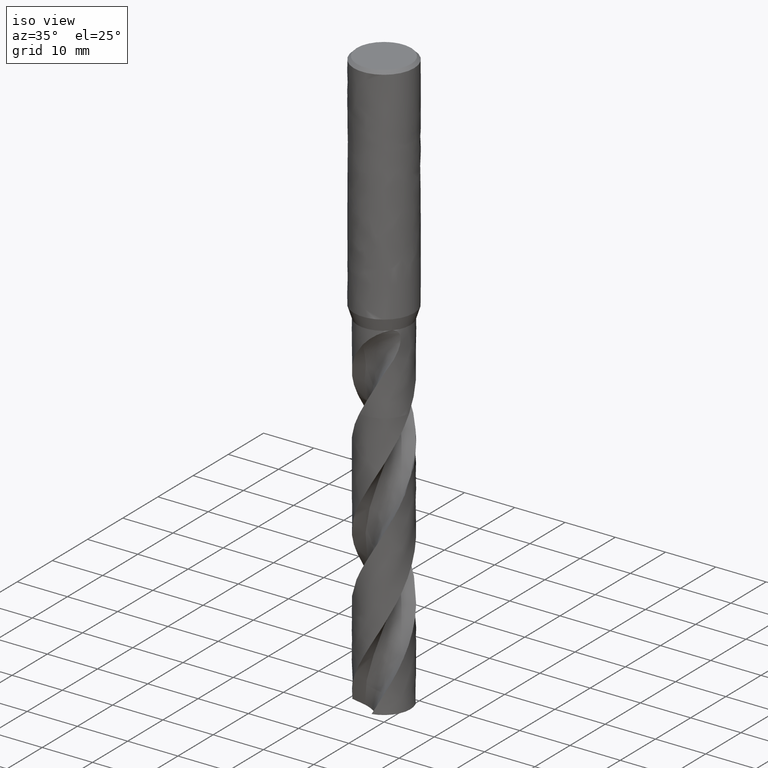
[diagram: clean part render]
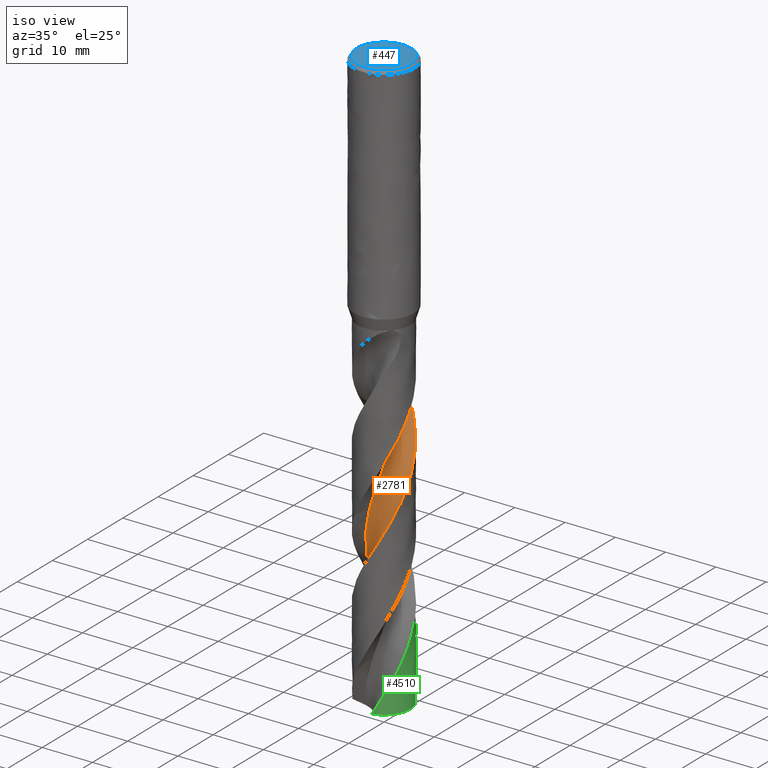
[diagram: same view with three faces highlighted in distinct colors, each labeled with its STEP entity id]
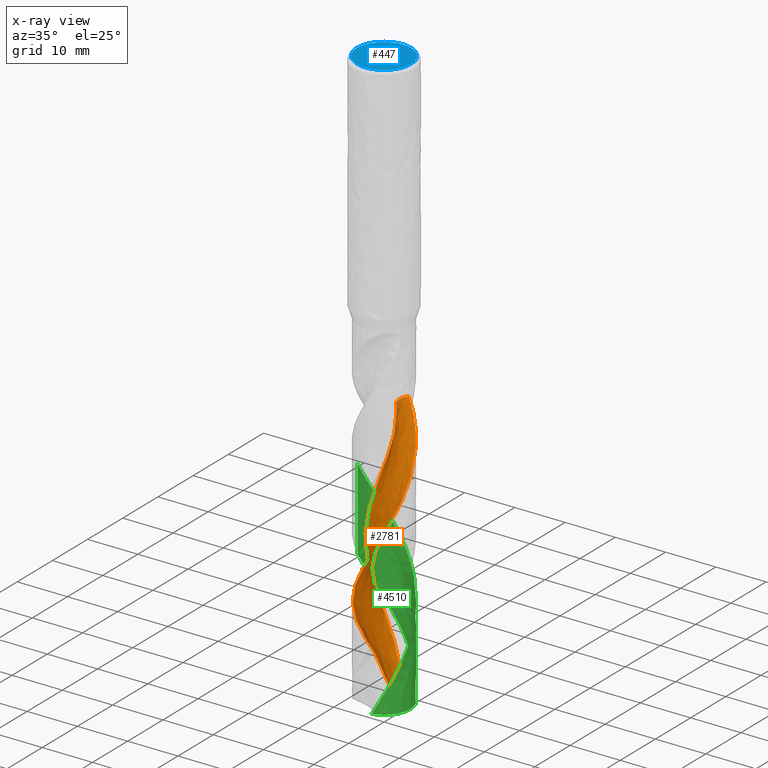
[diagram: x-ray of the same camera — body ghosted, the three highlighted faces saturated]
A machine part, iso view with three faces highlighted in distinct colors.
The next image is the same camera in x-ray (body ghosted, the three faces saturated) — at least one of them is partly hidden behind the body in this view.
Their STEP definitions:

[orange] entity #2781 — the highlighted face is a freeform B-spline surface patch.
#1964 = VERTEX_POINT('', #1965);
#1965 = CARTESIAN_POINT('', (1.35633793945835, 5.07176965111645, -62.75));
#2065 = VERTEX_POINT('', #2066);
#2066 = CARTESIAN_POINT('', (3.1334081568016, 0.248874584782166, -62.75));
#2072 = EDGE_CURVE('', #2065, #1964, #2073, .T.);
#2073 = B_SPLINE_CURVE_WITH_KNOTS('', 3, (#2074, #2075, #2076, #2077, #2078, #2079, #2080, #2081, #2082, #2083, #2084, #2085, #2086, #2087, #2088, #2089, #2090, #2091, #2092, #2093, #2094, #2095, #2096, #2097, #2098, #2099, #2100, #2101, #2102, #2103, #2104, #2105, #2106, #2107, #2108, #2109, #2110, #2111, #2112, #2113, #2114, #2115, #2116, #2117, #2118, #2119, #2120, #2121, #2122, #2123, #2124, #2125, #2126, #2127, #2128, #2129, #2130, #2131, #2132, #2133, #2134, #2135, #2136, #2137, #2138, #2139, #2140, #2141, #2142, #2143), .UNSPECIFIED., .F., .U., (4, 3, 3, 3, 3, 3, 3, 3, 3, 3, 3, 3, 3, 3, 3, 3, 3, 3, 3, 3, 3, 3, 3, 4), (0., 0.297289814293237, 0.594230461587513, 0.890830299739327, 1.18709591424545, 1.48303224947464, 1.77864270556402, 2.07392920506153, 2.36889223207832, 2.663530845595, 2.95784266756301, 3.01616542127915, 3.04211597583136, 3.33938297834455, 3.63630140955763, 3.93287950829857, 4.22912375063797, 4.52503897875334, 4.82062849576618, 5.11589413054066, 5.41083627513043, 5.70545389644996, 5.99974452274961, 6.00908405424866), .UNSPECIFIED.);
#2074 = CARTESIAN_POINT('', (3.13340815680161, 0.248874584782163, -62.75));
#2075 = CARTESIAN_POINT('', (3.03773633939749, 0.274701710646779, -62.75));
#2076 = CARTESIAN_POINT('', (2.94317957143944, 0.305081901126091, -62.75));
#2077 = CARTESIAN_POINT('', (2.85036837908436, 0.339812574161062, -62.75));
#2078 = CARTESIAN_POINT('', (2.75766619350968, 0.374502456007461, -62.75));
#2079 = CARTESIAN_POINT('', (2.66649978739498, 0.413609554930897, -62.75));
#2080 = CARTESIAN_POINT('', (2.57747565439929, 0.456873707034038, -62.75));
#2081 = CARTESIAN_POINT('', (2.48855369750748, 0.500088203360135, -62.75));
#2082 = CARTESIAN_POINT('', (2.40157224118669, 0.547545858980505, -62.75));
#2083 = CARTESIAN_POINT('', (2.31710861298185, 0.598931680183074, -62.75));
#2084 = CARTESIAN_POINT('', (2.23274016265008, 0.650259597252565, -62.75));
#2085 = CARTESIAN_POINT('', (2.15069751173773, 0.705620180617339, -62.75));
#2086 = CARTESIAN_POINT('', (2.07152398261853, 0.764646808243246, -62.75));
#2087 = CARTESIAN_POINT('', (1.99243844954458, 0.823607831748012, -62.75));
#2088 = CARTESIAN_POINT('', (1.91604136230938, 0.886356674590334, -62.75));
#2089 = CARTESIAN_POINT('', (1.84283753374668, 0.952478708119888, -62.75));
#2090 = CARTESIAN_POINT('', (1.76971431576755, 1.01852792939611, -62.75));
#2091 = CARTESIAN_POINT('', (1.69961651901388, 1.08808813804757, -62.75));
#2092 = CARTESIAN_POINT('', (1.63300631431776, 1.16070070768368, -62.75));
#2093 = CARTESIAN_POINT('', (1.56646910708993, 1.23323370191878, -62.75));
#2094 = CARTESIAN_POINT('', (1.50326584471458, 1.30897150209787, -62.75));
#2095 = CARTESIAN_POINT('', (1.44381232943583, 1.38741584363624, -62.75));
#2096 = CARTESIAN_POINT('', (1.38442394268855, 1.4657742530856, -62.75));
#2097 = CARTESIAN_POINT('', (1.32864705387687, 1.547004816231, -62.75));
#2098 = CARTESIAN_POINT('', (1.27684780636079, 1.63057430090482, -62.75));
#2099 = CARTESIAN_POINT('', (1.22510552996873, 1.71405187213002, -62.75));
#2100 = CARTESIAN_POINT('', (1.17721909885463, 1.80004557018658, -62.75));
#2101 = CARTESIAN_POINT('', (1.1335021700843, 1.8879921346606, -62.75));
#2102 = CARTESIAN_POINT('', (1.08983372892625, 1.97584115525311, -62.75));
#2103 = CARTESIAN_POINT('', (1.05023034210554, 2.06583018753049, -62.75));
#2104 = CARTESIAN_POINT('', (1.01495083842181, 2.1573711062066, -62.75));
#2105 = CARTESIAN_POINT('', (1.00795962145059, 2.17551145279273, -62.75));
#2106 = CARTESIAN_POINT('', (1.00113604244101, 2.19371729898418, -62.75));
#2107 = CARTESIAN_POINT('', (0.994481855415924, 2.21198396490982, -62.75));
#2108 = CARTESIAN_POINT('', (0.991521092550792, 2.22011166945713, -62.75));
#2109 = CARTESIAN_POINT('', (0.988593781741603, 2.22825163802009, -62.75));
#2110 = CARTESIAN_POINT('', (0.985700071969736, 2.23640345632695, -62.75));
#2111 = CARTESIAN_POINT('', (0.952552247390675, 2.32978360310717, -62.75));
#2112 = CARTESIAN_POINT('', (0.923783235876967, 2.4248349675074, -62.75));
#2113 = CARTESIAN_POINT('', (0.899584846387327, 2.52092382239249, -62.75));
#2114 = CARTESIAN_POINT('', (0.875414831604647, 2.61690000477512, -62.75));
#2115 = CARTESIAN_POINT('', (0.85575108170962, 2.71412416206394, -62.75));
#2116 = CARTESIAN_POINT('', (0.840724392229345, 2.81194959741999, -62.75));
#2117 = CARTESIAN_POINT('', (0.825714926571647, 2.90966290375758, -62.75));
#2118 = CARTESIAN_POINT('', (0.815298652126802, 3.00819238411712, -62.75));
#2119 = CARTESIAN_POINT('', (0.809544695377202, 3.10688415822458, -62.75));
#2120 = CARTESIAN_POINT('', (0.803797215826368, 3.20546483552244, -62.75));
#2121 = CARTESIAN_POINT('', (0.80268884737278, 3.30442514463471, -62.75));
#2122 = CARTESIAN_POINT('', (0.80622692906064, 3.40310982143746, -62.75));
#2123 = CARTESIAN_POINT('', (0.809761081290861, 3.50168489724981, -62.75));
#2124 = CARTESIAN_POINT('', (0.817939133212581, 3.60020216159013, -62.75));
#2125 = CARTESIAN_POINT('', (0.830707054000695, 3.69801072973293, -62.75));
#2126 = CARTESIAN_POINT('', (0.843460921258738, 3.79571164090664, -62.75));
#2127 = CARTESIAN_POINT('', (0.860822577634401, 3.89292022602044, -62.75));
#2128 = CARTESIAN_POINT('', (0.882677569939173, 3.98899565724803, -62.75));
#2129 = CARTESIAN_POINT('', (0.904508615373642, 4.084965817064, -62.75));
#2130 = CARTESIAN_POINT('', (0.930871026863394, 4.18001585059831, -62.75));
#2131 = CARTESIAN_POINT('', (0.961591395584619, 4.27352052997584, -62.75));
#2132 = CARTESIAN_POINT('', (0.99227810736585, 4.36692276652753, -62.75));
#2133 = CARTESIAN_POINT('', (1.0273803852674, 4.45898749936819, -62.75));
#2134 = CARTESIAN_POINT('', (1.0666678354923, 4.54911046163436, -62.75));
#2135 = CARTESIAN_POINT('', (1.10591205794503, 4.63913426208531, -62.75));
#2136 = CARTESIAN_POINT('', (1.14941794553576, 4.72741720303733, -62.75));
#2137 = CARTESIAN_POINT('', (1.1969005743829, 4.81338111175092, -62.75));
#2138 = CARTESIAN_POINT('', (1.24433050243402, 4.89924960943677, -62.75));
#2139 = CARTESIAN_POINT('', (1.2958316979214, 4.9829913714838, -62.75));
#2140 = CARTESIAN_POINT('', (1.35106762205654, 5.0640591804754, -62.75));
#2141 = CARTESIAN_POINT('', (1.35282057511463, 5.0666319275763, -62.75));
#2142 = CARTESIAN_POINT('', (1.35457735160466, 5.06920208999284, -62.75));
#2143 = CARTESIAN_POINT('', (1.35633793984703, 5.07176965084993, -62.75));
#2576 = EDGE_CURVE('', #1964, #2577, #2579, .T.);
#2577 = VERTEX_POINT('', #2578);
#2578 = CARTESIAN_POINT('', (2.6547706906538, 4.52931480248896, -65.1981860486764));
#2579 = B_SPLINE_CURVE_WITH_KNOTS('', 3, (#2580, #2581, #2582, #2583, #2584, #2585, #2586, #2587, #2588, #2589, #2590, #2591, #2592), .UNSPECIFIED., .F., .U., (4, 3, 3, 3, 4), (6.29673923205507, 7.0058564704972, 8.00463571452116, 9.00311465826317, 9.12238741529189), .UNSPECIFIED.);
#2580 = CARTESIAN_POINT('', (1.35633793945835, 5.07176965111645, -62.75));
#2581 = CARTESIAN_POINT('', (1.47041764698693, 5.04126143680722, -62.9547608036939));
#2582 = CARTESIAN_POINT('', (1.58348637967372, 5.00689627858444, -63.1595964558363));
#2583 = CARTESIAN_POINT('', (1.69522744394255, 4.96877287801566, -63.3643706202826));
#2584 = CARTESIAN_POINT('', (1.85261278115707, 4.91507673422517, -63.6527914540655));
#2585 = CARTESIAN_POINT('', (2.00748553237841, 4.85388001956981, -63.9412949717076));
#2586 = CARTESIAN_POINT('', (2.15905463211398, 4.78549716283958, -64.2297227624957));
#2587 = CARTESIAN_POINT('', (2.31057815997402, 4.71713486659985, -64.5180638324719));
#2588 = CARTESIAN_POINT('', (2.45888254606291, 4.64155368458583, -64.8064929032528));
#2589 = CARTESIAN_POINT('', (2.60321595322283, 4.55914100471631, -65.0948492339475));
#2590 = CARTESIAN_POINT('', (2.62045722156525, 4.549296443042, -65.1292946819804));
#2591 = CARTESIAN_POINT('', (2.63764254545916, 4.53935413511009, -65.1637403804218));
#2592 = CARTESIAN_POINT('', (2.65477069065386, 4.52931480248892, -65.1981860486765));
#2781 = ADVANCED_FACE('', (#2782), #3046, .T.);
#2782 = FACE_OUTER_BOUND('', #2783, .T.);
#2783 = EDGE_LOOP('', (#2784, #2785, #2849, #2975, #2987, #3045));
#2784 = ORIENTED_EDGE('', *, *, #2072, .F.);
#2785 = ORIENTED_EDGE('', *, *, #2786, .F.);
#2786 = EDGE_CURVE('', #2787, #2065, #2789, .T.);
#2787 = VERTEX_POINT('', #2788);
#2788 = CARTESIAN_POINT('', (2.79821184013639, 1.43162568454987, -116.855978291857));
#2789 = B_SPLINE_CURVE_WITH_KNOTS('', 3, (#2790, #2791, #2792, #2793, #2794, #2795, #2796, #2797, #2798, #2799, #2800, #2801, #2802, #2803, #2804, #2805, #2806, #2807, #2808, #2809, #2810, #2811, #2812, #2813, #2814, #2815, #2816, #2817, #2818, #2819, #2820, #2821, #2822, #2823, #2824, #2825, #2826, #2827, #2828, #2829, #2830, #2831, #2832, #2833, #2834, #2835, #2836, #2837, #2838, #2839, #2840, #2841, #2842, #2843, #2844, #2845, #2846, #2847, #2848), .UNSPECIFIED., .F., .U., (4, 1, 1, 1, 1, 1, 1, 1, 1, 1, 1, 1, 1, 1, 1, 1, 1, 1, 1, 1, 1, 1, 1, 1, 1, 1, 1, 1, 1, 1, 1, 1, 1, 1, 1, 1, 1, 1, 1, 1, 1, 1, 1, 1, 1, 1, 1, 1, 1, 1, 1, 1, 1, 1, 1, 1, 4), (1.19402170814299, 1.94712328767123, 2.92068493150685, 3.89424657534247, 4.86780821917808, 5.8413698630137, 6.81493150684932, 7.78849315068493, 8.76205479452055, 9.73561643835616, 10.7091780821918, 11.6827397260274, 12.656301369863, 13.6298630136986, 14.6034246575342, 15.5769863013699, 16.5505479452055, 17.5241095890411, 18.4976712328767, 19.4712328767123, 20.4447945205479, 21.4183561643836, 22.3919178082192, 23.3654794520548, 24.3390410958904, 25.312602739726, 26.2861643835616, 27.2597260273973, 28.2332876712329, 29.2068493150685, 30.1804109589041, 31.1539726027397, 32.1275342465753, 33.101095890411, 34.0746575342466, 35.0482191780822, 36.0217808219178, 36.9953424657534, 37.968904109589, 38.9424657534247, 39.9160273972603, 40.8895890410959, 41.8631506849315, 42.8367123287671, 43.8102739726027, 44.7838356164384, 45.757397260274, 46.7309589041096, 47.7045205479452, 48.6780821917808, 49.6516438356164, 50.6252054794521, 51.5987671232877, 52.5723287671233, 53.5458904109589, 54.5194520547945, 55.3), .UNSPECIFIED.);
#2790 = CARTESIAN_POINT('', (2.79821184013638, 1.43162568454987, -116.855978291857));
#2791 = CARTESIAN_POINT('', (2.75712214684186, 1.5070804061927, -116.604944432014));
#2792 = CARTESIAN_POINT('', (2.65598967799593, 1.67606990976741, -116.029390024226));
#2793 = CARTESIAN_POINT('', (2.47423372732643, 1.92400677676864, -115.129315068493));
#2794 = CARTESIAN_POINT('', (2.25116967736585, 2.16944879818279, -114.155753424658));
#2795 = CARTESIAN_POINT('', (2.00420425036731, 2.3895861067081, -113.182191780822));
#2796 = CARTESIAN_POINT('', (1.73615382624428, 2.58214062600635, -112.208630136986));
#2797 = CARTESIAN_POINT('', (1.45004508709054, 2.74514078872854, -111.235068493151));
#2798 = CARTESIAN_POINT('', (1.14908410278058, 2.87694196060475, -110.261506849315));
#2799 = CARTESIAN_POINT('', (0.836621102513387, 2.97624172467088, -109.287945205479));
#2800 = CARTESIAN_POINT('', (0.516114663338234, 3.04209199386261, -108.314383561644));
#2801 = CARTESIAN_POINT('', (0.19109478275684, 3.07390728948075, -107.340821917808));
#2802 = CARTESIAN_POINT('', (-0.134874545802901, 3.07146927486186, -106.367260273973));
#2803 = CARTESIAN_POINT('', (-0.458232939868773, 3.0349274795123, -105.393698630137));
#2804 = CARTESIAN_POINT('', (-0.775461020951674, 2.96479623763426, -104.420136986301));
#2805 = CARTESIAN_POINT('', (-1.08311722391051, 2.86194788817522, -103.446575342466));
#2806 = CARTESIAN_POINT('', (-1.37787365482435, 2.72760232342942, -102.47301369863));
#2807 = CARTESIAN_POINT('', (-1.65655064241312, 2.56331300738392, -101.499452054795));
#2808 = CARTESIAN_POINT('', (-1.91614964219238, 2.37094961904654, -100.525890410959));
#2809 = CARTESIAN_POINT('', (-2.15388417034934, 2.15267750803564, -99.5523287671233));
#2810 = CARTESIAN_POINT('', (-2.36720846492319, 1.91093417990146, -98.5787671232877));
#2811 = CARTESIAN_POINT('', (-2.55384359523886, 1.64840305661178, -97.6052054794521));
#2812 = CARTESIAN_POINT('', (-2.71180076640357, 1.36798478316551, -96.6316438356164));
#2813 = CARTESIAN_POINT('', (-2.83940159379618, 1.07276637417313, -95.6580821917808));
#2814 = CARTESIAN_POINT('', (-2.93529515259231, 0.765988514274105, -94.6845205479452));
#2815 = CARTESIAN_POINT('', (-2.99847163919656, 0.451011343282998, -93.7109589041096));
#2816 = CARTESIAN_POINT('', (-3.02827251470304, 0.131279070828892, -92.737397260274));
#2817 = CARTESIAN_POINT('', (-3.02439703487661, -0.189716224134706, -91.7638356164384));
#2818 = CARTESIAN_POINT('', (-2.98690510632807, -0.508471246303968, -90.7902739726027));
#2819 = CARTESIAN_POINT('', (-2.91621644423224, -0.821508222969054, -89.8167123287671));
#2820 = CARTESIAN_POINT('', (-2.81310604278971, -1.12541136197293, -88.8431506849315));
#2821 = CARTESIAN_POINT('', (-2.67869600534055, -1.41686266471232, -87.8695890410959));
#2822 = CARTESIAN_POINT('', (-2.5144438162857, -1.69267673658662, -86.8960273972603));
#2823 = CARTESIAN_POINT('', (-2.32212717144373, -1.94983424701387, -85.9224657534247));
#2824 = CARTESIAN_POINT('', (-2.10382551686197, -2.18551370409742, -84.9489041095891));
#2825 = CARTESIAN_POINT('', (-1.86189847811263, -2.39712122512495, -83.9753424657534));
#2826 = CARTESIAN_POINT('', (-1.59896139245043, -2.58231800317807, -83.0017808219178));
#2827 = CARTESIAN_POINT('', (-1.31785818461492, -2.73904519205562, -82.0282191780822));
#2828 = CARTESIAN_POINT('', (-1.02163185327022, -2.86554595628161, -81.0546575342466));
#2829 = CARTESIAN_POINT('', (-0.713492858847356, -2.96038445996452, -80.081095890411));
#2830 = CARTESIAN_POINT('', (-0.396785724668816, -3.02246159746644, -79.1075342465753));
#2831 = CARTESIAN_POINT('', (-0.0749541814927044, -3.05102729997496, -78.1339726027397));
#2832 = CARTESIAN_POINT('', (0.248494799163272, -3.04568928487573, -77.1604109589041));
#2833 = CARTESIAN_POINT('', (0.570027725516175, -3.00641814901605, -76.1868493150685));
#2834 = CARTESIAN_POINT('', (0.886121693711166, -2.93354874221941, -75.2132876712329));
#2835 = CARTESIAN_POINT('', (1.19330151223743, -2.82777779347776, -74.2397260273973));
#2836 = CARTESIAN_POINT('', (1.48817646939561, -2.69015779867668, -73.2661643835616));
#2837 = CARTESIAN_POINT('', (1.76747637178634, -2.52208721559386, -72.292602739726));
#2838 = CARTESIAN_POINT('', (2.02808648901892, -2.32529704734645, -71.3190410958904));
#2839 = CARTESIAN_POINT('', (2.26708104103188, -2.10183393498828, -70.3454794520548));
#2840 = CARTESIAN_POINT('', (2.4817549047093, -1.85403990132322, -69.3719178082192));
#2841 = CARTESIAN_POINT('', (2.66965312713995, -1.58452897267362, -68.3983561643836));
#2842 = CARTESIAN_POINT('', (2.82859824319863, -1.29616074773671, -67.4247945205479));
#2843 = CARTESIAN_POINT('', (2.95671395599351, -0.992011721723331, -66.4512328767123));
#2844 = CARTESIAN_POINT('', (3.05244921651772, -0.675342557634139, -65.4776712328767));
#2845 = CARTESIAN_POINT('', (3.11458641609078, -0.349569392316449, -64.5041095890411));
#2846 = CARTESIAN_POINT('', (3.14046236696781, -0.0401083352556175, -63.5948858447489));
#2847 = CARTESIAN_POINT('', (3.13816336359385, 0.15994654027839, -63.0101826484018));
#2848 = CARTESIAN_POINT('', (3.1334081568016, 0.248874584782166, -62.75));
#2849 = ORIENTED_EDGE('', *, *, #2850, .T.);
#2850 = EDGE_CURVE('', #2787, #2851, #2853, .T.);
#2851 = VERTEX_POINT('', #2852);
#2852 = CARTESIAN_POINT('', (-1.12024850568416, 5.12908795844958, -116.089156270102));
#2853 = B_SPLINE_CURVE_WITH_KNOTS('', 3, (#2854, #2855, #2856, #2857, #2858, #2859, #2860, #2861, #2862, #2863, #2864, #2865, #2866, #2867, #2868, #2869, #2870, #2871, #2872, #2873, #2874, #2875, #2876, #2877, #2878, #2879, #2880, #2881, #2882, #2883, #2884, #2885, #2886, #2887, #2888, #2889, #2890, #2891, #2892, #2893, #2894, #2895, #2896, #2897, #2898, #2899, #2900, #2901, #2902, #2903, #2904, #2905, #2906, #2907, #2908, #2909, #2910, #2911, #2912, #2913, #2914, #2915, #2916, #2917, #2918, #2919, #2920, #2921, #2922, #2923, #2924, #2925, #2926, #2927, #2928, #2929, #2930, #2931, #2932, #2933, #2934, #2935, #2936, #2937, #2938, #2939, #2940, #2941, #2942, #2943, #2944, #2945, #2946, #2947, #2948, #2949, #2950, #2951, #2952, #2953, #2954, #2955, #2956, #2957, #2958, #2959, #2960, #2961, #2962, #2963, #2964, #2965, #2966, #2967, #2968, #2969, #2970, #2971, #2972, #2973, #2974), .UNSPECIFIED., .F., .U., (4, 3, 3, 3, 3, 3, 3, 3, 3, 3, 3, 3, 3, 3, 3, 3, 3, 3, 3, 3, 3, 3, 3, 3, 3, 3, 3, 3, 3, 3, 3, 3, 3, 3, 3, 3, 3, 3, 3, 3, 4), (0., 0.197298782090467, 0.394420374583593, 0.591302453466249, 0.787881699456628, 0.918886004257084, 1.04978506174524, 1.18058571113442, 1.31130550796433, 1.44197361851215, 1.57262927055431, 1.7033171253576, 1.83408006544024, 1.96495130188257, 2.0959484675768, 2.22707172691829, 2.35830615386279, 2.48962688880147, 2.62100491876215, 2.75241180764629, 2.88382267147544, 3.01521749215596, 3.05414310091256, 3.09310782648458, 3.22500062195647, 3.2639676720048, 3.46280793164408, 3.66119938575211, 3.85921606723413, 4.05692014955587, 4.25436209683734, 4.45158206842408, 4.64861163420899, 4.84547539503795, 5.04219236603146, 5.23877709902165, 5.43524056738803, 5.63159085078668, 5.92534421739598, 6.2187567080506, 6.26438132676479), .UNSPECIFIED.);
#2854 = CARTESIAN_POINT('', (2.79821184013639, 1.43162568454986, -116.855978291857));
#2855 = CARTESIAN_POINT('', (2.73805043670471, 1.41668837459971, -116.87794834772));
#2856 = CARTESIAN_POINT('', (2.67716208648094, 1.40416420574341, -116.899721404657));
#2857 = CARTESIAN_POINT('', (2.61579144733372, 1.39416939127695, -116.921144508552));
#2858 = CARTESIAN_POINT('', (2.5544759237768, 1.38418355292849, -116.942548372839));
#2859 = CARTESIAN_POINT('', (2.49258365044758, 1.37670750762035, -116.963636488343));
#2860 = CARTESIAN_POINT('', (2.43037618832194, 1.37183432076658, -116.984225794033));
#2861 = CARTESIAN_POINT('', (2.3682443116949, 1.3669670551037, -117.00479008258));
#2862 = CARTESIAN_POINT('', (2.30569600202889, 1.36468898666089, -117.024890724317));
#2863 = CARTESIAN_POINT('', (2.24300882719714, 1.36506302502219, -117.044310521911));
#2864 = CARTESIAN_POINT('', (2.18041807423665, 1.3654364880588, -117.06370044907));
#2865 = CARTESIAN_POINT('', (2.11758026715663, 1.3684554013836, -117.082445151086));
#2866 = CARTESIAN_POINT('', (2.05478817293928, 1.37414316721294, -117.100292092832));
#2867 = CARTESIAN_POINT('', (2.01294227711001, 1.37793360706627, -117.112185648453));
#2868 = CARTESIAN_POINT('', (1.97107455808785, 1.38291180406721, -117.123691921523));
#2869 = CARTESIAN_POINT('', (1.92927558949453, 1.38907224137812, -117.134728149775));
#2870 = CARTESIAN_POINT('', (1.88751020169924, 1.3952277294664, -117.145755511652));
#2871 = CARTESIAN_POINT('', (1.84577804022692, 1.40256893248501, -117.15632275515));
#2872 = CARTESIAN_POINT('', (1.80417239620506, 1.41107817605522, -117.16634291087));
#2873 = CARTESIAN_POINT('', (1.7625980307303, 1.41958102249393, -117.176355533575));
#2874 = CARTESIAN_POINT('', (1.72111350535521, 1.42925776849937, -117.185830401794));
#2875 = CARTESIAN_POINT('', (1.67981431864798, 1.44007661146099, -117.194679621529));
#2876 = CARTESIAN_POINT('', (1.63854066044507, 1.45088876690886, -117.203523371244));
#2877 = CARTESIAN_POINT('', (1.59741480778921, 1.46285150419134, -117.21174986748));
#2878 = CARTESIAN_POINT('', (1.55653343330291, 1.47591724098392, -117.21927510622));
#2879 = CARTESIAN_POINT('', (1.51566822321026, 1.48897781161671, -117.226797369499));
#2880 = CARTESIAN_POINT('', (1.47500958609774, 1.50315262244652, -117.233625439605));
#2881 = CARTESIAN_POINT('', (1.43465356865481, 1.5183775343433, -117.239685329034));
#2882 = CARTESIAN_POINT('', (1.39430139894236, 1.53360099462613, -117.245744640685));
#2883 = CARTESIAN_POINT('', (1.35421425731713, 1.54988847405006, -117.251041134487));
#2884 = CARTESIAN_POINT('', (1.31448488850104, 1.56716001135187, -117.255517500634));
#2885 = CARTESIAN_POINT('', (1.27474572756839, 1.58443580557776, -117.259994970073));
#2886 = CARTESIAN_POINT('', (1.23532790788973, 1.60271188897173, -117.263655723615));
#2887 = CARTESIAN_POINT('', (1.19631751488465, 1.6218951858609, -117.266465006156));
#2888 = CARTESIAN_POINT('', (1.15728470888442, 1.64108950430373, -117.26927590274));
#2889 = CARTESIAN_POINT('', (1.11862495706457, 1.66120892099848, -117.271236752572));
#2890 = CARTESIAN_POINT('', (1.08041422445719, 1.68215189200746, -117.272338942784));
#2891 = CARTESIAN_POINT('', (1.0421718461615, 1.70311220774362, -117.273442045818));
#2892 = CARTESIAN_POINT('', (1.00434697484377, 1.72491474638785, -117.273686135096));
#2893 = CARTESIAN_POINT('', (0.967002709044664, 1.7474553847061, -117.273088970209));
#2894 = CARTESIAN_POINT('', (0.929622509181038, 1.7700177124788, -117.272491230706));
#2895 = CARTESIAN_POINT('', (0.892694826887339, 1.79333667372917, -117.271050505952));
#2896 = CARTESIAN_POINT('', (0.856268576105158, 1.81731152282979, -117.268807710055));
#2897 = CARTESIAN_POINT('', (0.819807262588658, 1.841309449347, -117.266562755315));
#2898 = CARTESIAN_POINT('', (0.783822967299419, 1.86598086807492, -117.263513101271));
#2899 = CARTESIAN_POINT('', (0.748350797405722, 1.89123325817726, -117.259717098187));
#2900 = CARTESIAN_POINT('', (0.712848553853692, 1.91650705750702, -117.255917876814));
#2901 = CARTESIAN_POINT('', (0.677837639728355, 1.94237795145805, -117.251369223167));
#2902 = CARTESIAN_POINT('', (0.643341160997167, 1.96876466733243, -117.246140218162));
#2903 = CARTESIAN_POINT('', (0.608821995216897, 1.99516873676694, -117.240907774236));
#2904 = CARTESIAN_POINT('', (0.574799791553889, 2.02210299624958, -117.234991773035));
#2905 = CARTESIAN_POINT('', (0.541288279221762, 2.04949853857778, -117.228465751271));
#2906 = CARTESIAN_POINT('', (0.507762145871584, 2.07690603353631, -117.221936882213));
#2907 = CARTESIAN_POINT('', (0.474732119319635, 2.10478739087889, -117.21479486998));
#2908 = CARTESIAN_POINT('', (0.442205350535548, 2.13308567402282, -117.207112747093));
#2909 = CARTESIAN_POINT('', (0.409671436816105, 2.16139017325925, -117.199428936726));
#2910 = CARTESIAN_POINT('', (0.377628603284641, 2.19012252265944, -117.191202076389));
#2911 = CARTESIAN_POINT('', (0.346079930460651, 2.21923642698538, -117.182501330522));
#2912 = CARTESIAN_POINT('', (0.31453030331653, 2.2483512119818, -117.173800321466));
#2913 = CARTESIAN_POINT('', (0.283464602733019, 2.27785704479949, -117.164622698662));
#2914 = CARTESIAN_POINT('', (0.252883830299363, 2.30771653454548, -117.155031845394));
#2915 = CARTESIAN_POINT('', (0.222306791285176, 2.33757237892898, -117.145442163016));
#2916 = CARTESIAN_POINT('', (0.19220598160984, 2.36779019567438, -117.135436719818));
#2917 = CARTESIAN_POINT('', (0.162581763274355, 2.3983397222268, -117.125072315239));
#2918 = CARTESIAN_POINT('', (0.153805612687331, 2.40738999462049, -117.122001868812));
#2919 = CARTESIAN_POINT('', (0.14507086191227, 2.41646985241958, -117.118899730091));
#2920 = CARTESIAN_POINT('', (0.136377523207081, 2.42557860679845, -117.115767263553));
#2921 = CARTESIAN_POINT('', (0.127675448460598, 2.43469651467484, -117.112631649162));
#2922 = CARTESIAN_POINT('', (0.119014689270838, 2.44384356569807, -117.109465581198));
#2923 = CARTESIAN_POINT('', (0.110395262159711, 2.45301910803402, -117.106270377658));
#2924 = CARTESIAN_POINT('', (0.0812191209098157, 2.48407765934915, -117.09545484333));
#2925 = CARTESIAN_POINT('', (0.0525123052532879, 2.51546686729066, -117.084304363934));
#2926 = CARTESIAN_POINT('', (0.0242759980939433, 2.54716432897023, -117.072865898482));
#2927 = CARTESIAN_POINT('', (0.0159337259454045, 2.55652918147224, -117.069486462523));
#2928 = CARTESIAN_POINT('', (0.007632188059831, 2.5659213440111, -117.066081713132));
#2929 = CARTESIAN_POINT('', (-0.000628566916140694, 2.57534030133885, -117.062652759287));
#2930 = CARTESIAN_POINT('', (-0.0427813771032518, 2.62340316260904, -117.045155564299));
#2931 = CARTESIAN_POINT('', (-0.0838837953782495, 2.67217554149581, -117.027025568356));
#2932 = CARTESIAN_POINT('', (-0.123925318861019, 2.72159775807992, -117.008393048996));
#2933 = CARTESIAN_POINT('', (-0.163876463980518, 2.77090842298828, -116.989802585394));
#2934 = CARTESIAN_POINT('', (-0.202787955622924, 2.82088660918101, -116.970703876358));
#2935 = CARTESIAN_POINT('', (-0.240642016951065, 2.87148294910992, -116.951202044809));
#2936 = CARTESIAN_POINT('', (-0.278424569826218, 2.92198370970419, -116.931737053317));
#2937 = CARTESIAN_POINT('', (-0.315168062008477, 2.97311976244793, -116.911862736854));
#2938 = CARTESIAN_POINT('', (-0.350847497284945, 3.0248473797083, -116.891664580328));
#2939 = CARTESIAN_POINT('', (-0.3864706071982, 3.07649333713276, -116.871498309635));
#2940 = CARTESIAN_POINT('', (-0.42104597343725, 3.1287479880787, -116.85100161151));
#2941 = CARTESIAN_POINT('', (-0.454541858996464, 3.18157009789992, -116.830244932669));
#2942 = CARTESIAN_POINT('', (-0.487993332496976, 3.23432217110014, -116.809515775025));
#2943 = CARTESIAN_POINT('', (-0.520380129111795, 3.28765921270226, -116.788519697068));
#2944 = CARTESIAN_POINT('', (-0.551664357057241, 3.34154029467587, -116.767315773608));
#2945 = CARTESIAN_POINT('', (-0.582913413458199, 3.39536080041039, -116.746135688828));
#2946 = CARTESIAN_POINT('', (-0.613073559005087, 3.44974353744289, -116.724740461823));
#2947 = CARTESIAN_POINT('', (-0.642101308656856, 3.50464628019084, -116.703180662574));
#2948 = CARTESIAN_POINT('', (-0.671101033500066, 3.55949601714698, -116.68164167821));
#2949 = CARTESIAN_POINT('', (-0.69898111081978, 3.61488488172898, -116.659930440729));
#2950 = CARTESIAN_POINT('', (-0.725692959562543, 3.67076808420328, -116.638091247737));
#2951 = CARTESIAN_POINT('', (-0.752382329664162, 3.72660425966471, -116.616270432933));
#2952 = CARTESIAN_POINT('', (-0.777915455913158, 3.78295504867119, -116.59431355714));
#2953 = CARTESIAN_POINT('', (-0.802239098042119, 3.83977201184856, -116.572260392873));
#2954 = CARTESIAN_POINT('', (-0.826544603448453, 3.89654660992714, -116.550223672366));
#2955 = CARTESIAN_POINT('', (-0.849651923227336, 3.9538090232205, -116.52808208408));
#2956 = CARTESIAN_POINT('', (-0.871503558019417, 4.01150615810646, -116.505872259371));
#2957 = CARTESIAN_POINT('', (-0.893340503603244, 4.06916450755426, -116.483677364653));
#2958 = CARTESIAN_POINT('', (-0.913932398624512, 4.12728079559947, -116.4614051248));
#2959 = CARTESIAN_POINT('', (-0.933217881099218, 4.18579628621337, -116.439090144878));
#2960 = CARTESIAN_POINT('', (-0.952491467193459, 4.24427568115063, -116.416788930103));
#2961 = CARTESIAN_POINT('', (-0.970468584906589, 4.3031792873506, -116.394435276467));
#2962 = CARTESIAN_POINT('', (-0.987084440511286, 4.36244171372381, -116.372062679468));
#2963 = CARTESIAN_POINT('', (-1.00369072352167, 4.42166999830021, -116.349702971591));
#2964 = CARTESIAN_POINT('', (-1.01894492636792, 4.48128412782121, -116.327313966508));
#2965 = CARTESIAN_POINT('', (-1.03277933077347, 4.54121099470104, -116.304928820845));
#2966 = CARTESIAN_POINT('', (-1.05347653985726, 4.63086565978016, -116.27143912179));
#2967 = CARTESIAN_POINT('', (-1.07101445575827, 4.72130660696913, -116.23792655025));
#2968 = CARTESIAN_POINT('', (-1.08515665261963, 4.81225072078248, -116.20450410558));
#2969 = CARTESIAN_POINT('', (-1.0992824386568, 4.9030893016381, -116.171120444831));
#2970 = CARTESIAN_POINT('', (-1.11003698854804, 4.9945420783732, -116.137785455195));
#2971 = CARTESIAN_POINT('', (-1.11717914367893, 5.08627294711273, -116.104617824161));
#2972 = CARTESIAN_POINT('', (-1.11828972388606, 5.10053677719449, -116.099460373243));
#2973 = CARTESIAN_POINT('', (-1.11931314584915, 5.11480891287572, -116.094306366845));
#2974 = CARTESIAN_POINT('', (-1.12024850568416, 5.12908795844958, -116.089156270102));
#2975 = ORIENTED_EDGE('', *, *, #2976, .F.);
#2976 = EDGE_CURVE('', #2977, #2851, #2979, .T.);
#2977 = VERTEX_POINT('', #2978);
#2978 = CARTESIAN_POINT('', (-2.02076360020489, 4.84551488204164, -114.420233004824));
#2979 = B_SPLINE_CURVE_WITH_KNOTS('', 3, (#2980, #2981, #2982, #2983, #2984, #2985, #2986), .UNSPECIFIED., .F., .U., (4, 3, 4), (0., 0.996301580925719, 1.91792912295967), .UNSPECIFIED.);
#2980 = CARTESIAN_POINT('', (-2.02076360020499, 4.8455148820416, -114.420233004824));
#2981 = CARTESIAN_POINT('', (-1.86966732667526, 4.90852776242859, -114.709179458424));
#2982 = CARTESIAN_POINT('', (-1.71559368830757, 4.96447690971918, -114.998210679973));
#2983 = CARTESIAN_POINT('', (-1.55929526592334, 5.01309268552534, -115.287171005139));
#2984 = CARTESIAN_POINT('', (-1.41471160410489, 5.05806464865189, -115.554473395627));
#2985 = CARTESIAN_POINT('', (-1.26815855958831, 5.09678279655645, -115.821842833923));
#2986 = CARTESIAN_POINT('', (-1.12024850568417, 5.12908795844958, -116.089156270102));
#2987 = ORIENTED_EDGE('', *, *, #2988, .T.);
#2988 = EDGE_CURVE('', #2977, #2577, #2989, .T.);
#2989 = B_SPLINE_CURVE_WITH_KNOTS('', 3, (#2990, #2991, #2992, #2993, #2994, #2995, #2996, #2997, #2998, #2999, #3000, #3001, #3002, #3003, #3004, #3005, #3006, #3007, #3008, #3009, #3010, #3011, #3012, #3013, #3014, #3015, #3016, #3017, #3018, #3019, #3020, #3021, #3022, #3023, #3024, #3025, #3026, #3027, #3028, #3029, #3030, #3031, #3032, #3033, #3034, #3035, #3036, #3037, #3038, #3039, #3040, #3041, #3042, #3043, #3044), .UNSPECIFIED., .F., .U., (4, 1, 1, 1, 1, 1, 1, 1, 1, 1, 1, 1, 1, 1, 1, 1, 1, 1, 1, 1, 1, 1, 1, 1, 1, 1, 1, 1, 1, 1, 1, 1, 1, 1, 1, 1, 1, 1, 1, 1, 1, 1, 1, 1, 1, 1, 1, 1, 1, 1, 1, 1, 4), (3.62976699517575, 3.89424657534247, 4.86780821917808, 5.8413698630137, 6.81493150684932, 7.78849315068493, 8.76205479452055, 9.73561643835616, 10.7091780821918, 11.6827397260274, 12.656301369863, 13.6298630136986, 14.6034246575342, 15.5769863013699, 16.5505479452055, 17.5241095890411, 18.4976712328767, 19.4712328767123, 20.4447945205479, 21.4183561643836, 22.3919178082192, 23.3654794520548, 24.3390410958904, 25.312602739726, 26.2861643835616, 27.2597260273973, 28.2332876712329, 29.2068493150685, 30.1804109589041, 31.1539726027397, 32.1275342465753, 33.101095890411, 34.0746575342466, 35.0482191780822, 36.0217808219178, 36.9953424657534, 37.968904109589, 38.9424657534247, 39.9160273972603, 40.8895890410959, 41.8631506849315, 42.8367123287671, 43.8102739726027, 44.7838356164384, 45.757397260274, 46.7309589041096, 47.7045205479452, 48.6780821917808, 49.6516438356164, 50.6252054794521, 51.5987671232877, 52.5723287671233, 52.8518139513235), .UNSPECIFIED.);
#2990 = CARTESIAN_POINT('', (-2.02076360020497, 4.84551488204161, -114.420233004824));
#2991 = CARTESIAN_POINT('', (-2.06680613516951, 4.82502728813152, -114.332073144769));
#2992 = CARTESIAN_POINT('', (-2.28089073838208, 4.72608042694964, -113.919392736768));
#2993 = CARTESIAN_POINT('', (-2.65054061567023, 4.5242164558473, -113.182191780822));
#2994 = CARTESIAN_POINT('', (-3.10695379729294, 4.20865325109652, -112.208630136986));
#2995 = CARTESIAN_POINT('', (-3.52678078198065, 3.84778998701871, -111.235068493151));
#2996 = CARTESIAN_POINT('', (-3.90560510807014, 3.44577325125947, -110.261506849315));
#2997 = CARTESIAN_POINT('', (-4.23947066748275, 3.0071713457929, -109.287945205479));
#2998 = CARTESIAN_POINT('', (-4.52492112887634, 2.53692443233861, -108.314383561644));
#2999 = CARTESIAN_POINT('', (-4.75903392088734, 2.0402907433996, -107.340821917808));
#3000 = CARTESIAN_POINT('', (-4.93944856709605, 1.52278988919004, -106.367260273973));
#3001 = CARTESIAN_POINT('', (-5.06438909226114, 0.990143722248361, -105.393698630137));
#3002 = CARTESIAN_POINT('', (-5.13268031372759, 0.448215400600721, -104.420136986301));
#3003 = CARTESIAN_POINT('', (-5.14375788357614, -0.0970527383464839, -103.446575342466));
#3004 = CARTESIAN_POINT('', (-5.09767201137108, -0.639701861583667, -102.47301369863));
#3005 = CARTESIAN_POINT('', (-4.99508485873355, -1.17381925141006, -101.499452054795));
#3006 = CARTESIAN_POINT('', (-4.83726165886775, -1.69360021609531, -100.525890410959));
#3007 = CARTESIAN_POINT('', (-4.62605567496576, -2.19340868297715, -99.5523287671233));
#3008 = CARTESIAN_POINT('', (-4.36388717086067, -2.66783587222585, -98.5787671232877));
#3009 = CARTESIAN_POINT('', (-4.05371662478192, -3.11175647069443, -97.6052054794521));
#3010 = CARTESIAN_POINT('', (-3.69901247211051, -3.52038175178654, -96.6316438356164));
#3011 = CARTESIAN_POINT('', (-3.30371371514754, -3.88930911886685, -95.6580821917808));
#3012 = CARTESIAN_POINT('', (-2.87218778665017, -4.21456758609475, -94.6845205479452));
#3013 = CARTESIAN_POINT('', (-2.40918409883205, -4.4926587513337, -93.7109589041096));
#3014 = CARTESIAN_POINT('', (-1.91978375028854, -4.72059286059372, -92.737397260274));
#3015 = CARTESIAN_POINT('', (-1.40934589954007, -4.89591961188516, -91.7638356164384));
#3016 = CARTESIAN_POINT('', (-0.883451345284083, -5.01675339795756, -90.7902739726027));
#3017 = CARTESIAN_POINT('', (-0.347843879738414, -5.08179274169709, -89.8167123287671));
#3018 = CARTESIAN_POINT('', (0.191629997573603, -5.09033373447208, -88.8431506849315));
#3019 = CARTESIAN_POINT('', (0.729082402783805, -5.04227734594057, -87.8695890410959));
#3020 = CARTESIAN_POINT('', (1.25864581474611, -4.9381305332478, -86.8960273972603));
#3021 = CARTESIAN_POINT('', (1.77453462946246, -4.77900113761425, -85.9224657534247));
#3022 = CARTESIAN_POINT('', (2.27110590677074, -4.56658661651324, -84.9489041095891));
#3023 = CARTESIAN_POINT('', (2.7429187015907, -4.30315671942401, -83.9753424657534));
#3024 = CARTESIAN_POINT('', (3.18479138510437, -3.99153027398865, -83.0017808219178));
#3025 = CARTESIAN_POINT('', (3.59185637990471, -3.63504630677443, -82.0282191780822));
#3026 = CARTESIAN_POINT('', (3.95961175722772, -3.23752977822949, -81.0546575342466));
#3027 = CARTESIAN_POINT('', (4.28396917368924, -2.80325226432171, -80.081095890411));
#3028 = CARTESIAN_POINT('', (4.56129765923129, -2.33688796728402, -79.1075342465753));
#3029 = CARTESIAN_POINT('', (4.78846280695827, -1.84346548439879, -78.1339726027397));
#3030 = CARTESIAN_POINT('', (4.9628609588796, -1.32831580640202, -77.1604109589041));
#3031 = CARTESIAN_POINT('', (5.08244802890615, -0.797017055483589, -76.1868493150685));
#3032 = CARTESIAN_POINT('', (5.14576265536422, -0.255336506600917, -75.2132876712329));
#3033 = CARTESIAN_POINT('', (5.15194342936809, 0.290829535305251, -74.2397260273973));
#3034 = CARTESIAN_POINT('', (5.10074000211365, 0.835517406327738, -73.2661643835616));
#3035 = CARTESIAN_POINT('', (4.99251793320197, 1.37275868793139, -72.292602739726));
#3036 = CARTESIAN_POINT('', (4.82825720229513, 1.89664312111722, -71.3190410958904));
#3037 = CARTESIAN_POINT('', (4.60954436966317, 2.40138118645971, -70.3454794520548));
#3038 = CARTESIAN_POINT('', (4.33855842778746, 2.8813657577841, -69.3719178082192));
#3039 = CARTESIAN_POINT('', (4.01805046974862, 3.33123204793205, -68.3983561643836));
#3040 = CARTESIAN_POINT('', (3.65131728254832, 3.74591580385936, -67.4247945205479));
#3041 = CARTESIAN_POINT('', (3.24216933014307, 4.12070701185735, -66.4512328767123));
#3042 = CARTESIAN_POINT('', (2.90118414951522, 4.3727423036568, -65.7090300527552));
#3043 = CARTESIAN_POINT('', (2.70006742915971, 4.50131124159853, -65.2913477767432));
#3044 = CARTESIAN_POINT('', (2.65477069065386, 4.52931480248892, -65.1981860486765));
#3045 = ORIENTED_EDGE('', *, *, #2576, .F.);
#3046 = (
   BOUNDED_SURFACE ()
   B_SPLINE_SURFACE (3, 2, ((#3047, #3048, #3049, #3050, #3051), (#3052, #3053, #3054, #3055, #3056), (#3057, #3058, #3059, #3060, #3061), (#3062, #3063, #3064, #3065, #3066), (#3067, #3068, #3069, #3070, #3071), (#3072, #3073, #3074, #3075, #3076), (#3077, #3078, #3079, #3080, #3081), (#3082, #3083, #3084, #3085, #3086), (#3087, #3088, #3089, #3090, #3091), (#3092, #3093, #3094, #3095, #3096), (#3097, #3098, #3099, #3100, #3101), (#3102, #3103, #3104, #3105, #3106), (#3107, #3108, #3109, #3110, #3111), (#3112, #3113, #3114, #3115, #3116), (#3117, #3118, #3119, #3120, #3121), (#3122, #3123, #3124, #3125, #3126), (#3127, #3128, #3129, #3130, #3131), (#3132, #3133, #3134, #3135, #3136), (#3137, #3138, #3139, #3140, #3141), (#3142, #3143, #3144, #3145, #3146), (#3147, #3148, #3149, #3150, #3151), (#3152, #3153, #3154, #3155, #3156), (#3157, #3158, #3159, #3160, #3161), (#3162, #3163, #3164, #3165, #3166), (#3167, #3168, #3169, #3170, #3171), (#3172, #3173, #3174, #3175, #3176), (#3177, #3178, #3179, #3180, #3181), (#3182, #3183, #3184, #3185, #3186), (#3187, #3188, #3189, #3190, #3191), (#3192, #3193, #3194, #3195, #3196), (#3197, #3198, #3199, #3200, #3201), (#3202, #3203, #3204, #3205, #3206), (#3207, #3208, #3209, #3210, #3211), (#3212, #3213, #3214, #3215, #3216), (#3217, #3218, #3219, #3220, #3221), (#3222, #3223, #3224, #3225, #3226), (#3227, #3228, #3229, #3230, #3231), (#3232, #3233, #3234, #3235, #3236), (#3237, #3238, #3239, #3240, #3241), (#3242, #3243, #3244, #3245, #3246), (#3247, #3248, #3249, #3250, #3251), (#3252, #3253, #3254, #3255, #3256), (#3257, #3258, #3259, #3260, #3261), (#3262, #3263, #3264, #3265, #3266), (#3267, #3268, #3269, #3270, #3271), (#3272, #3273, #3274, #3275, #3276), (#3277, #3278, #3279, #3280, #3281), (#3282, #3283, #3284, #3285, #3286), (#3287, #3288, #3289, #3290, #3291), (#3292, #3293, #3294, #3295, #3296), (#3297, #3298, #3299, #3300, #3301), (#3302, #3303, #3304, #3305, #3306), (#3307, #3308, #3309, #3310, #3311), (#3312, #3313, #3314, #3315, #3316), (#3317, #3318, #3319, #3320, #3321), (#3322, #3323, #3324, #3325, #3326), (#3327, #3328, #3329, #3330, #3331), (#3332, #3333, #3334, #3335, #3336), (#3337, #3338, #3339, #3340, #3341)), .UNSPECIFIED., .F., .F., .U.)
   B_SPLINE_SURFACE_WITH_KNOTS ((4, 1, 1, 1, 1, 1, 1, 1, 1, 1, 1, 1, 1, 1, 1, 1, 1, 1, 1, 1, 1, 1, 1, 1, 1, 1, 1, 1, 1, 1, 1, 1, 1, 1, 1, 1, 1, 1, 1, 1, 1, 1, 1, 1, 1, 1, 1, 1, 1, 1, 1, 1, 1, 1, 1, 1, 4), (3, 2, 3), (0.776313864893421, 1.94712328767123, 2.92068493150685, 3.89424657534247, 4.86780821917808, 5.8413698630137, 6.81493150684932, 7.78849315068493, 8.76205479452055, 9.73561643835616, 10.7091780821918, 11.6827397260274, 12.656301369863, 13.6298630136986, 14.6034246575342, 15.5769863013699, 16.5505479452055, 17.5241095890411, 18.4976712328767, 19.4712328767123, 20.4447945205479, 21.4183561643836, 22.3919178082192, 23.3654794520548, 24.3390410958904, 25.312602739726, 26.2861643835616, 27.2597260273973, 28.2332876712329, 29.2068493150685, 30.1804109589041, 31.1539726027397, 32.1275342465753, 33.101095890411, 34.0746575342466, 35.0482191780822, 36.0217808219178, 36.9953424657534, 37.968904109589, 38.9424657534247, 39.9160273972603, 40.8895890410959, 41.8631506849315, 42.8367123287671, 43.8102739726027, 44.7838356164384, 45.757397260274, 46.7309589041096, 47.7045205479452, 48.6780821917808, 49.6516438356164, 50.6252054794521, 51.5987671232877, 52.5723287671233, 53.5458904109589, 54.5194520547945, 55.3), (0., 0.5, 1.), .UNSPECIFIED.)
   GEOMETRIC_REPRESENTATION_ITEM ()
   RATIONAL_B_SPLINE_SURFACE (((1., 0.887010833178222, 1., 0.887010833178222, 1.), (1., 0.887010833178222, 1., 0.887010833178222, 1.), (1., 0.887010833178222, 1., 0.887010833178222, 1.), (1., 0.887010833178221, 1., 0.887010833178221, 1.), (1., 0.887010833178221, 1., 0.887010833178221, 1.), (1., 0.887010833178221, 1., 0.887010833178221, 1.), (1., 0.887010833178222, 1., 0.887010833178222, 1.), (1., 0.887010833178222, 1., 0.887010833178222, 1.), (1., 0.887010833178221, 1., 0.887010833178221, 1.), (1., 0.887010833178222, 1., 0.887010833178222, 1.), (1., 0.887010833178222, 1., 0.887010833178222, 1.), (1., 0.887010833178222, 1., 0.887010833178222, 1.), (1., 0.887010833178221, 1., 0.887010833178221, 1.), (1., 0.887010833178221, 1., 0.887010833178221, 1.), (1., 0.887010833178222, 1., 0.887010833178222, 1.), (1., 0.887010833178222, 1., 0.887010833178222, 1.), (1., 0.887010833178222, 1., 0.887010833178222, 1.), (1., 0.887010833178222, 1., 0.887010833178222, 1.), (1., 0.887010833178222, 1., 0.887010833178222, 1.), (1., 0.887010833178222, 1., 0.887010833178222, 1.), (1., 0.887010833178222, 1., 0.887010833178222, 1.), (1., 0.887010833178222, 1., 0.887010833178222, 1.), (1., 0.887010833178222, 1., 0.887010833178222, 1.), (1., 0.887010833178222, 1., 0.887010833178222, 1.), (1., 0.887010833178222, 1., 0.887010833178222, 1.), (1., 0.887010833178222, 1., 0.887010833178222, 1.), (1., 0.887010833178222, 1., 0.887010833178222, 1.), (1., 0.887010833178222, 1., 0.887010833178222, 1.), (1., 0.887010833178222, 1., 0.887010833178222, 1.), (1., 0.887010833178222, 1., 0.887010833178222, 1.), (1., 0.887010833178222, 1., 0.887010833178222, 1.), (1., 0.887010833178222, 1., 0.887010833178222, 1.), (1., 0.887010833178222, 1., 0.887010833178222, 1.), (1., 0.887010833178221, 1., 0.887010833178221, 1.), (1., 0.887010833178222, 1., 0.887010833178222, 1.), (1., 0.887010833178222, 1., 0.887010833178222, 1.), (1., 0.887010833178222, 1., 0.887010833178222, 1.), (1., 0.887010833178222, 1., 0.887010833178222, 1.), (1., 0.887010833178222, 1., 0.887010833178222, 1.), (1., 0.887010833178222, 1., 0.887010833178222, 1.), (1., 0.887010833178222, 1., 0.887010833178222, 1.), (1., 0.887010833178222, 1., 0.887010833178222, 1.), (1., 0.887010833178222, 1., 0.887010833178222, 1.), (1., 0.887010833178222, 1., 0.887010833178222, 1.), (1., 0.887010833178222, 1., 0.887010833178222, 1.), (1., 0.887010833178222, 1., 0.887010833178222, 1.), (1., 0.887010833178222, 1., 0.887010833178222, 1.), (1., 0.887010833178222, 1., 0.887010833178222, 1.), (1., 0.887010833178222, 1., 0.887010833178222, 1.), (1., 0.887010833178222, 1., 0.887010833178222, 1.), (1., 0.887010833178221, 1., 0.887010833178221, 1.), (1., 0.887010833178222, 1., 0.887010833178222, 1.), (1., 0.887010833178222, 1., 0.887010833178222, 1.), (1., 0.887010833178221, 1., 0.887010833178221, 1.), (1., 0.887010833178222, 1., 0.887010833178222, 1.), (1., 0.887010833178222, 1., 0.887010833178222, 1.), (1., 0.887010833178222, 1., 0.887010833178222, 1.), (1., 0.887010833178221, 1., 0.887010833178221, 1.), (1., 0.887010833178222, 1., 0.887010833178222, 1.)))
   REPRESENTATION_ITEM ('')
   SURFACE ()
);
#3047 = CARTESIAN_POINT('', (-0.446548506866929, 5.27179387972693, -117.273686135107));
#3048 = CARTESIAN_POINT('', (-0.875855916477433, 3.68712331041058, -117.273686135107));
#3049 = CARTESIAN_POINT('', (0.175989605799165, 2.42652557026087, -117.273686135107));
#3050 = CARTESIAN_POINT('', (1.22783512807576, 1.16592783011116, -117.273686135107));
#3051 = CARTESIAN_POINT('', (2.8637701502047, 1.304500080493, -117.273686135107));
#3052 = CARTESIAN_POINT('', (-0.670004359318056, 5.24696395531486, -116.883416327514));
#3053 = CARTESIAN_POINT('', (-1.03151582516109, 3.64581736622866, -116.883416327514));
#3054 = CARTESIAN_POINT('', (0.0727122182169174, 2.43130455530573, -116.883416327514));
#3055 = CARTESIAN_POINT('', (1.17694026159493, 1.2167917443828, -116.883416327514));
#3056 = CARTESIAN_POINT('', (2.80517009951726, 1.42470647348527, -116.883416327514));
#3057 = CARTESIAN_POINT('', (-1.07571087569143, 5.17569470476351, -116.168625971976));
#3058 = CARTESIAN_POINT('', (-1.31135253341383, 3.55227078327099, -116.168625971976));
#3059 = CARTESIAN_POINT('', (-0.116680011667842, 2.42808673005132, -116.168625971976));
#3060 = CARTESIAN_POINT('', (1.07799251007814, 1.30390267683166, -116.168625971976));
#3061 = CARTESIAN_POINT('', (2.6841061830597, 1.63771563222735, -116.168625971976));
#3062 = CARTESIAN_POINT('', (-1.6476528846438, 5.00523800312093, -115.129315068493));
#3063 = CARTESIAN_POINT('', (-1.69842252645005, 3.37081677257829, -115.129315068493));
#3064 = CARTESIAN_POINT('', (-0.388703304443762, 2.39176321179375, -115.129315068493));
#3065 = CARTESIAN_POINT('', (0.921015917562523, 1.4127096510092, -115.129315068493));
#3066 = CARTESIAN_POINT('', (2.47423372732643, 1.92400677676864, -115.129315068493));
#3067 = CARTESIAN_POINT('', (-2.16237393700052, 4.79080186645001, -114.155753424658));
#3068 = CARTESIAN_POINT('', (-2.04028965673994, 3.16428106093655, -114.155753424658));
#3069 = CARTESIAN_POINT('', (-0.637897147418656, 2.3313526414103, -114.155753424658));
#3070 = CARTESIAN_POINT('', (0.764495361902627, 1.49842422188406, -114.155753424658));
#3071 = CARTESIAN_POINT('', (2.25116967736585, 2.16944879818279, -114.155753424658));
#3072 = CARTESIAN_POINT('', (-2.65054061567023, 4.5242164558473, -113.182191780822));
#3073 = CARTESIAN_POINT('', (-2.35781090238641, 2.92362136403042, -113.182191780822));
#3074 = CARTESIAN_POINT('', (-0.878777295086278, 2.24534787828568, -113.182191780822));
#3075 = CARTESIAN_POINT('', (0.600256312213851, 1.56707439254095, -113.182191780822));
#3076 = CARTESIAN_POINT('', (2.00420425036731, 2.3895861067081, -113.182191780822));
#3077 = CARTESIAN_POINT('', (-3.10695379729294, 4.20865325109652, -112.208630136986));
#3078 = CARTESIAN_POINT('', (-2.64763983062583, 2.65163615535432, -112.208630136986));
#3079 = CARTESIAN_POINT('', (-1.10875442548852, 2.13481581300671, -112.208630136986));
#3080 = CARTESIAN_POINT('', (0.430130979648797, 1.6179954706591, -112.208630136986));
#3081 = CARTESIAN_POINT('', (1.73615382624428, 2.58214062600635, -112.208630136986));
#3082 = CARTESIAN_POINT('', (-3.52678078198065, 3.84778998701871, -111.235068493151));
#3083 = CARTESIAN_POINT('', (-2.90674331308797, 2.3514436470402, -111.235068493151));
#3084 = CARTESIAN_POINT('', (-1.32536926791864, 2.00107960598761, -111.235068493151));
#3085 = CARTESIAN_POINT('', (0.256004777250696, 1.65071556493502, -111.235068493151));
#3086 = CARTESIAN_POINT('', (1.45004508709054, 2.74514078872854, -111.235068493151));
#3087 = CARTESIAN_POINT('', (-3.90560510807014, 3.44577325125947, -110.261506849315));
#3088 = CARTESIAN_POINT('', (-3.13243284467853, 2.02645000718159, -110.261506849315));
#3089 = CARTESIAN_POINT('', (-1.52631791626362, 1.84570527895796, -110.261506849315));
#3090 = CARTESIAN_POINT('', (0.0797970121513003, 1.66496055073434, -110.261506849315));
#3091 = CARTESIAN_POINT('', (1.14908410278058, 2.87694196060475, -110.261506849315));
#3092 = CARTESIAN_POINT('', (-4.23947066748275, 3.0071713457929, -109.287945205479));
#3093 = CARTESIAN_POINT('', (-3.32239079167232, 1.6803112849194, -109.287945205479));
#3094 = CARTESIAN_POINT('', (-1.70947525330577, 1.67048347471345, -109.287945205479));
#3095 = CARTESIAN_POINT('', (-0.0965597149392146, 1.6606556645075, -109.287945205479));
#3096 = CARTESIAN_POINT('', (0.836621102513387, 2.97624172467088, -109.287945205479));
#3097 = CARTESIAN_POINT('', (-4.52492112887634, 2.53692443233861, -108.314383561644));
#3098 = CARTESIAN_POINT('', (-3.47469302759267, 1.31689390947086, -108.314383561644));
#3099 = CARTESIAN_POINT('', (-1.87291643900057, 1.47740964606115, -108.314383561644));
#3100 = CARTESIAN_POINT('', (-0.271139850408473, 1.63792538265143, -108.314383561644));
#3101 = CARTESIAN_POINT('', (0.516114663338234, 3.04209199386261, -108.314383561644));
#3102 = CARTESIAN_POINT('', (-4.75903392088734, 2.0402907433996, -107.340821917808));
#3103 = CARTESIAN_POINT('', (-3.58782729790438, 0.940232979425586, -107.340821917808));
#3104 = CARTESIAN_POINT('', (-2.01493621066778, 1.26866206688638, -107.340821917808));
#3105 = CARTESIAN_POINT('', (-0.442045123431177, 1.59709115434717, -107.340821917808));
#3106 = CARTESIAN_POINT('', (0.19109478275684, 3.07390728948075, -107.340821917808));
#3107 = CARTESIAN_POINT('', (-4.93944856709605, 1.52278988919003, -106.367260273973));
#3108 = CARTESIAN_POINT('', (-3.66070727526165, 0.554489094262442, -106.367260273973));
#3109 = CARTESIAN_POINT('', (-2.13406582642474, 1.04657811831489, -106.367260273973));
#3110 = CARTESIAN_POINT('', (-0.607424377587836, 1.53866714236733, -106.367260273973));
#3111 = CARTESIAN_POINT('', (-0.1348745458029, 3.07146927486186, -106.367260273973));
#3112 = CARTESIAN_POINT('', (-5.06438909226114, 0.990143722248361, -105.393698630137));
#3113 = CARTESIAN_POINT('', (-3.69268215565121, 0.163904084987271, -105.393698630137));
#3114 = CARTESIAN_POINT('', (-2.22908749129745, 0.813629039564494, -105.393698630137));
#3115 = CARTESIAN_POINT('', (-0.7654928269437, 1.46335399414172, -105.393698630137));
#3116 = CARTESIAN_POINT('', (-0.458232939868773, 3.0349274795123, -105.393698630137));
#3117 = CARTESIAN_POINT('', (-5.13268031372759, 0.448215400600721, -104.420136986301));
#3118 = CARTESIAN_POINT('', (-3.68354173161949, -0.227243882371017, -104.420136986301));
#3119 = CARTESIAN_POINT('', (-2.29904613543484, 0.572393421193728, -104.420136986301));
#3120 = CARTESIAN_POINT('', (-0.914550539250186, 1.37203072475847, -104.420136986301));
#3121 = CARTESIAN_POINT('', (-0.775461020951674, 2.96479623763426, -104.420136986301));
#3122 = CARTESIAN_POINT('', (-5.14375788357614, -0.0970527383464843, -103.446575342466));
#3123 = CARTESIAN_POINT('', (-3.63351691232646, -0.614685382473041, -103.446575342466));
#3124 = CARTESIAN_POINT('', (-2.34325843937874, 0.32552970913805, -103.446575342466));
#3125 = CARTESIAN_POINT('', (-1.05299996643102, 1.26574480074914, -103.446575342466));
#3126 = CARTESIAN_POINT('', (-1.08311722391051, 2.86194788817522, -103.446575342466));
#3127 = CARTESIAN_POINT('', (-5.09767201137108, -0.639701861583667, -102.47301369863));
#3128 = CARTESIAN_POINT('', (-3.54327570777214, -0.994204530721698, -102.47301369863));
#3129 = CARTESIAN_POINT('', (-2.36131902914631, 0.0757480013654939, -102.47301369863));
#3130 = CARTESIAN_POINT('', (-1.17936235052047, 1.14570053345269, -102.47301369863));
#3131 = CARTESIAN_POINT('', (-1.37787365482435, 2.72760232342942, -102.47301369863));
#3132 = CARTESIAN_POINT('', (-4.99508485873355, -1.17381925141006, -101.499452054795));
#3133 = CARTESIAN_POINT('', (-3.41391473790301, -1.36168306005576, -101.499452054795));
#3134 = CARTESIAN_POINT('', (-2.35310379183225, -0.174218577091077, -101.499452054795));
#3135 = CARTESIAN_POINT('', (-1.29229284576148, 1.0132459058736, -101.499452054795));
#3136 = CARTESIAN_POINT('', (-1.65655064241312, 2.56331300738392, -101.499452054795));
#3137 = CARTESIAN_POINT('', (-4.83726165886775, -1.69360021609531, -100.525890410959));
#3138 = CARTESIAN_POINT('', (-3.24694637082118, -1.71314323568561, -100.525890410959));
#3139 = CARTESIAN_POINT('', (-2.31877029077987, -0.421642631950365, -100.525890410959));
#3140 = CARTESIAN_POINT('', (-1.39059421073856, 0.869857971784879, -100.525890410959));
#3141 = CARTESIAN_POINT('', (-1.91614964219238, 2.37094961904655, -100.525890410959));
#3142 = CARTESIAN_POINT('', (-4.62605567496576, -2.19340868297715, -99.5523287671233));
#3143 = CARTESIAN_POINT('', (-3.04428163631962, -2.04478918256041, -99.5523287671233));
#3144 = CARTESIAN_POINT('', (-2.25875528770795, -0.663831101778875, -99.5523287671233));
#3145 = CARTESIAN_POINT('', (-1.47322893909627, 0.717126979002664, -99.5523287671233));
#3146 = CARTESIAN_POINT('', (-2.15388417034934, 2.15267750803564, -99.5523287671233));
#3147 = CARTESIAN_POINT('', (-4.36388717086067, -2.66783587222585, -98.5787671232877));
#3148 = CARTESIAN_POINT('', (-2.80820910142664, -2.35304621767611, -98.5787671232877));
#3149 = CARTESIAN_POINT('', (-2.17376940729664, -0.898153418586869, -98.5787671232877));
#3150 = CARTESIAN_POINT('', (-1.53932971316663, 0.556739380502378, -98.5787671232877));
#3151 = CARTESIAN_POINT('', (-2.36720846492319, 1.91093417990146, -98.5787671232877));
#3152 = CARTESIAN_POINT('', (-4.05371662478192, -3.11175647069443, -97.6052054794521));
#3153 = CARTESIAN_POINT('', (-2.54136993311567, -2.63459780044486, -97.6052054794521));
#3154 = CARTESIAN_POINT('', (-2.06478900736759, -1.122068946637, -97.6052054794521));
#3155 = CARTESIAN_POINT('', (-1.58820808161952, 0.390459907170859, -97.6052054794521));
#3156 = CARTESIAN_POINT('', (-2.55384359523885, 1.64840305661178, -97.6052054794521));
#3157 = CARTESIAN_POINT('', (-3.6990124721105, -3.52038175178654, -96.6316438356164));
#3158 = CARTESIAN_POINT('', (-2.24672940951524, -2.88641973896997, -96.6316438356165));
#3159 = CARTESIAN_POINT('', (-1.93304534469912, -1.33315342726552, -96.6316438356164));
#3160 = CARTESIAN_POINT('', (-1.61936127988299, 0.220112884438927, -96.6316438356165));
#3161 = CARTESIAN_POINT('', (-2.71180076640357, 1.36798478316551, -96.6316438356164));
#3162 = CARTESIAN_POINT('', (-3.30371371514754, -3.88930911886685, -95.6580821917808));
#3163 = CARTESIAN_POINT('', (-1.92754517451965, -3.1058113179823, -95.6580821917808));
#3164 = CARTESIAN_POINT('', (-1.7800111524584, -1.52912416812052, -95.6580821917808));
#3165 = CARTESIAN_POINT('', (-1.63247713039715, 0.0475629817412666, -95.6580821917808));
#3166 = CARTESIAN_POINT('', (-2.83940159379618, 1.07276637417313, -95.6580821917808));
#3167 = CARTESIAN_POINT('', (-2.87218778665017, -4.21456758609475, -94.6845205479452));
#3168 = CARTESIAN_POINT('', (-1.58733256136944, -3.29042304512108, -94.6845205479452));
#3169 = CARTESIAN_POINT('', (-1.60738476998298, -1.70786372823203, -94.6845205479452));
#3170 = CARTESIAN_POINT('', (-1.62743697859653, -0.125304411342971, -94.6845205479452));
#3171 = CARTESIAN_POINT('', (-2.93529515259231, 0.765988514274105, -94.6845205479452));
#3172 = CARTESIAN_POINT('', (-2.40918409883205, -4.4926587513337, -93.7109589041096));
#3173 = CARTESIAN_POINT('', (-1.2298273382815, -3.43828074589538, -93.7109589041096));
#3174 = CARTESIAN_POINT('', (-1.41707198898656, -1.86744186561813, -93.7109589041096));
#3175 = CARTESIAN_POINT('', (-1.60431663969161, -0.296602985340875, -93.7109589041096));
#3176 = CARTESIAN_POINT('', (-2.99847163919656, 0.451011343282998, -93.7109589041096));
#3177 = CARTESIAN_POINT('', (-1.91978375028853, -4.72059286059372, -92.737397260274));
#3178 = CARTESIAN_POINT('', (-0.858946253329358, -3.54780577372762, -92.737397260274));
#3179 = CARTESIAN_POINT('', (-1.21116580199805, -2.00613553155191, -92.737397260274));
#3180 = CARTESIAN_POINT('', (-1.56338535066674, -0.464465289376201, -92.737397260274));
#3181 = CARTESIAN_POINT('', (-3.02827251470304, 0.131279070828892, -92.737397260274));
#3182 = CARTESIAN_POINT('', (-1.40934589954007, -4.89591961188516, -91.7638356164384));
#3183 = CARTESIAN_POINT('', (-0.478745776302348, -3.61783113962808, -91.7638356164384));
#3184 = CARTESIAN_POINT('', (-0.991924258779396, -2.12244671500374, -91.7638356164384));
#3185 = CARTESIAN_POINT('', (-1.50510274125644, -0.627062290379397, -91.7638356164384));
#3186 = CARTESIAN_POINT('', (-3.02439703487661, -0.189716224134706, -91.7638356164384));
#3187 = CARTESIAN_POINT('', (-0.883451345284082, -5.01675339795756, -90.7902739726027));
#3188 = CARTESIAN_POINT('', (-0.0933794520382504, -3.64761340593121, -90.7902739726027));
#3189 = CARTESIAN_POINT('', (-0.761746654435379, -2.21511796195144, -90.7902739726027));
#3190 = CARTESIAN_POINT('', (-1.43011385683251, -0.782622517971671, -90.7902739726027));
#3191 = CARTESIAN_POINT('', (-2.98690510632807, -0.508471246303967, -90.7902739726027));
#3192 = CARTESIAN_POINT('', (-0.347843879738413, -5.08179274169709, -89.8167123287671));
#3193 = CARTESIAN_POINT('', (0.292945707414109, -3.63684022978112, -89.8167123287671));
#3194 = CARTESIAN_POINT('', (-0.523148288772566, -2.28314541702478, -89.8167123287671));
#3195 = CARTESIAN_POINT('', (-1.33924228495924, -0.929450604268444, -89.8167123287671));
#3196 = CARTESIAN_POINT('', (-2.91621644423224, -0.821508222969054, -89.8167123287671));
#3197 = CARTESIAN_POINT('', (0.191629997573603, -5.09033373447208, -88.8431506849315));
#3198 = CARTESIAN_POINT('', (0.676013355590734, -3.58563348431449, -88.8431506849315));
#3199 = CARTESIAN_POINT('', (-0.278734050048795, -2.32578925911327, -88.8431506849315));
#3200 = CARTESIAN_POINT('', (-1.23348145568832, -1.06594503391205, -88.8431506849315));
#3201 = CARTESIAN_POINT('', (-2.81310604278971, -1.12541136197293, -88.8431506849315));
#3202 = CARTESIAN_POINT('', (0.729082402783806, -5.04227734594057, -87.8695890410959));
#3203 = CARTESIAN_POINT('', (1.05164202838148, -3.4945479283764, -87.8695890410959));
#3204 = CARTESIAN_POINT('', (-0.0311710874613787, -2.34258142790084, -87.8695890410959));
#3205 = CARTESIAN_POINT('', (-1.11398420330424, -1.19061492742527, -87.8695890410959));
#3206 = CARTESIAN_POINT('', (-2.67869600534055, -1.41686266471232, -87.8695890410959));
#3207 = CARTESIAN_POINT('', (1.25864581474611, -4.9381305332478, -86.8960273972603));
#3208 = CARTESIAN_POINT('', (1.41572900313146, -3.36456543873612, -86.8960273972603));
#3209 = CARTESIAN_POINT('', (0.216839154545145, -2.33333056457041, -86.8960273972603));
#3210 = CARTESIAN_POINT('', (-0.982050694041173, -1.3020956904047, -86.8960273972603));
#3211 = CARTESIAN_POINT('', (-2.5144438162857, -1.69267673658662, -86.8960273972603));
#3212 = CARTESIAN_POINT('', (1.77453462946246, -4.77900113761425, -85.9224657534247));
#3213 = CARTESIAN_POINT('', (1.76429336190003, -3.19708486176096, -85.9224657534247));
#3214 = CARTESIAN_POINT('', (0.46258926088861, -2.29812411691119, -85.9224657534247));
#3215 = CARTESIAN_POINT('', (-0.839114840122812, -1.39916337206142, -85.9224657534247));
#3216 = CARTESIAN_POINT('', (-2.32212717144373, -1.94983424701388, -85.9224657534247));
#3217 = CARTESIAN_POINT('', (2.27110590677074, -4.56658661651324, -84.9489041095891));
#3218 = CARTESIAN_POINT('', (2.09351782826058, -2.99390758397587, -84.948904109589));
#3219 = CARTESIAN_POINT('', (0.703394246536864, -2.23732758652201, -84.9489041095891));
#3220 = CARTESIAN_POINT('', (-0.686729335186852, -1.48074758906817, -84.948904109589));
#3221 = CARTESIAN_POINT('', (-2.10382551686197, -2.18551370409742, -84.9489041095891));
#3222 = CARTESIAN_POINT('', (2.7429187015907, -4.30315671942401, -83.9753424657534));
#3223 = CARTESIAN_POINT('', (2.39978895860726, -2.75721896250391, -83.9753424657534));
#3224 = CARTESIAN_POINT('', (0.936619749496135, -2.15158092349039, -83.9753424657534));
#3225 = CARTESIAN_POINT('', (-0.526549459614991, -1.54594288447688, -83.9753424657534));
#3226 = CARTESIAN_POINT('', (-1.86189847811263, -2.39712122512495, -83.9753424657534));
#3227 = CARTESIAN_POINT('', (3.18479138510437, -3.99153027398865, -83.0017808219178));
#3228 = CARTESIAN_POINT('', (2.67973528444601, -2.48956579667923, -83.0017808219178));
#3229 = CARTESIAN_POINT('', (1.15970973403557, -2.04179210159315, -83.0017808219178));
#3230 = CARTESIAN_POINT('', (-0.36031581637487, -1.59401840650707, -83.0017808219178));
#3231 = CARTESIAN_POINT('', (-1.59896139245043, -2.58231800317807, -83.0017808219178));
#3232 = CARTESIAN_POINT('', (3.59185637990471, -3.63504630677443, -82.0282191780822));
#3233 = CARTESIAN_POINT('', (2.93026302145334, -2.1938300607856, -82.0282191780822));
#3234 = CARTESIAN_POINT('', (1.37021342643502, -1.90912793446355, -82.0282191780822));
#3235 = CARTESIAN_POINT('', (-0.189836168583294, -1.62442580814151, -82.0282191780822));
#3236 = CARTESIAN_POINT('', (-1.31785818461492, -2.73904519205562, -82.0282191780822));
#3237 = CARTESIAN_POINT('', (3.95961175722772, -3.23752977822949, -81.0546575342466));
#3238 = CARTESIAN_POINT('', (3.14858898402404, -1.87319915455457, -81.0546575342466));
#3239 = CARTESIAN_POINT('', (1.56581121250094, -1.75500222005723, -81.0546575342466));
#3240 = CARTESIAN_POINT('', (-0.0169665590221629, -1.63680528555989, -81.0546575342466));
#3241 = CARTESIAN_POINT('', (-1.02163185327022, -2.86554595628161, -81.0546575342466));
#3242 = CARTESIAN_POINT('', (4.28396917368924, -2.80325226432171, -80.081095890411));
#3243 = CARTESIAN_POINT('', (3.33227037040395, -1.53113296242114, -80.081095890411));
#3244 = CARTESIAN_POINT('', (1.74433923560469, -1.58106132688216, -80.081095890411));
#3245 = CARTESIAN_POINT('', (0.15640810080543, -1.63098969134318, -80.081095890411));
#3246 = CARTESIAN_POINT('', (-0.713492858847356, -2.96038445996452, -80.081095890411));
#3247 = CARTESIAN_POINT('', (4.56129765923129, -2.33688796728402, -79.1075342465753));
#3248 = CARTESIAN_POINT('', (3.47923111309003, -1.17132804426976, -79.1075342465753));
#3249 = CARTESIAN_POINT('', (1.90381244598118, -1.38916736060198, -79.1075342465753));
#3250 = CARTESIAN_POINT('', (0.328393778872333, -1.60700667693421, -79.1075342465753));
#3251 = CARTESIAN_POINT('', (-0.396785724668816, -3.02246159746644, -79.1075342465753));
#3252 = CARTESIAN_POINT('', (4.78846280695827, -1.84346548439879, -78.1339726027397));
#3253 = CARTESIAN_POINT('', (3.58778452172612, -0.797679309213137, -78.1339726027397));
#3254 = CARTESIAN_POINT('', (2.04244586638608, -1.18137907354628, -78.1339726027397));
#3255 = CARTESIAN_POINT('', (0.49710721104605, -1.56507883787943, -78.1339726027397));
#3256 = CARTESIAN_POINT('', (-0.0749541814927043, -3.05102729997496, -78.1339726027397));
#3257 = CARTESIAN_POINT('', (4.9628609588796, -1.32831580640202, -77.1604109589041));
#3258 = CARTESIAN_POINT('', (3.65665198094902, -0.414239549559181, -77.1604109589041));
#3259 = CARTESIAN_POINT('', (2.15867385582901, -0.959930702146631, -77.1604109589041));
#3260 = CARTESIAN_POINT('', (0.660695730709001, -1.50562185473408, -77.1604109589041));
#3261 = CARTESIAN_POINT('', (0.248494799163272, -3.04568928487573, -77.1604109589041));
#3262 = CARTESIAN_POINT('', (5.08244802890615, -0.797017055483588, -76.1868493150685));
#3263 = CARTESIAN_POINT('', (3.68497750324278, -0.0251772342965682, -76.1868493150685));
#3264 = CARTESIAN_POINT('', (2.25116717183817, -0.72720893815705, -76.1868493150685));
#3265 = CARTESIAN_POINT('', (0.817356840433549, -1.42924064201753, -76.1868493150685));
#3266 = CARTESIAN_POINT('', (0.570027725516175, -3.00641814901605, -76.1868493150685));
#3267 = CARTESIAN_POINT('', (5.14576265536422, -0.255336506600916, -75.2132876712329));
#3268 = CARTESIAN_POINT('', (3.67233797650989, 0.365267020071901, -75.2132876712329));
#3269 = CARTESIAN_POINT('', (2.31884765241394, -0.485728258501597, -75.2132876712329));
#3270 = CARTESIAN_POINT('', (0.965357328317984, -1.33672353707509, -75.2132876712329));
#3271 = CARTESIAN_POINT('', (0.886121693711166, -2.93354874221941, -75.2132876712329));
#3272 = CARTESIAN_POINT('', (5.15194342936809, 0.290829535305252, -74.2397260273973));
#3273 = CARTESIAN_POINT('', (3.61874898743998, 0.752824868806705, -74.2397260273973));
#3274 = CARTESIAN_POINT('', (2.36090036131594, -0.238104855590645, -74.2397260273973));
#3275 = CARTESIAN_POINT('', (1.1030517351919, -1.22903457998799, -74.2397260273973));
#3276 = CARTESIAN_POINT('', (1.19330151223742, -2.82777779347776, -74.2397260273973));
#3277 = CARTESIAN_POINT('', (5.10074000211365, 0.835517406327738, -73.2661643835616));
#3278 = CARTESIAN_POINT('', (3.52466614440879, 1.1332451053091, -73.2661643835616));
#3279 = CARTESIAN_POINT('', (2.37678306441835, 0.0129705754044415, -73.2661643835616));
#3280 = CARTESIAN_POINT('', (1.22889998442791, -1.10730395450021, -73.2661643835616));
#3281 = CARTESIAN_POINT('', (1.48817646939561, -2.69015779867668, -73.2661643835616));
#3282 = CARTESIAN_POINT('', (4.99251793320197, 1.37275868793139, -72.292602739726));
#3283 = CARTESIAN_POINT('', (3.39098186748915, 1.50233852436303, -72.292602739726));
#3284 = CARTESIAN_POINT('', (2.36623293031831, 0.264760922935234, -72.292602739726));
#3285 = CARTESIAN_POINT('', (1.34148399314746, -0.972816678492563, -72.292602739726));
#3286 = CARTESIAN_POINT('', (1.76747637178634, -2.52208721559386, -72.292602739726));
#3287 = CARTESIAN_POINT('', (4.82825720229513, 1.89664312111722, -71.3190410958904));
#3288 = CARTESIAN_POINT('', (3.21901765670863, 1.85602233231308, -71.3190410958904));
#3289 = CARTESIAN_POINT('', (2.32927037510549, 0.514511341511171, -71.3190410958904));
#3290 = CARTESIAN_POINT('', (1.43952309350234, -0.826999649290742, -71.3190410958904));
#3291 = CARTESIAN_POINT('', (2.02808648901892, -2.32529704734645, -71.3190410958904));
#3292 = CARTESIAN_POINT('', (4.60954436966317, 2.40138118645971, -70.3454794520548));
#3293 = CARTESIAN_POINT('', (3.01051189666931, 2.19036364647228, -70.3454794520548));
#3294 = CARTESIAN_POINT('', (2.26619999846142, 0.759478238741324, -70.3454794520548));
#3295 = CARTESIAN_POINT('', (1.52188810025354, -0.671407168989633, -70.3454794520548));
#3296 = CARTESIAN_POINT('', (2.26708104103188, -2.10183393498828, -70.3454794520548));
#3297 = CARTESIAN_POINT('', (4.33855842778746, 2.8813657577841, -69.3719178082192));
#3298 = CARTESIAN_POINT('', (2.76760329025651, 2.5016216686993, -69.3719178082192));
#3299 = CARTESIAN_POINT('', (2.17760858768461, 0.996958294961887, -69.3719178082192));
#3300 = CARTESIAN_POINT('', (1.58761388511271, -0.507705078775524, -69.3719178082192));
#3301 = CARTESIAN_POINT('', (2.4817549047093, -1.85403990132322, -69.3719178082192));
#3302 = CARTESIAN_POINT('', (4.01805046974861, 3.33123204793205, -68.3983561643836));
#3303 = CARTESIAN_POINT('', (2.49281009345173, 2.78628799284134, -68.3983561643836));
#3304 = CARTESIAN_POINT('', (2.06436019058731, 1.22431715143601, -68.3983561643836));
#3305 = CARTESIAN_POINT('', (1.6359102877229, -0.337653689969311, -68.3983561643836));
#3306 = CARTESIAN_POINT('', (2.66965312713995, -1.58452897267362, -68.3983561643836));
#3307 = CARTESIAN_POINT('', (3.65131728254832, 3.74591580385936, -67.4247945205479));
#3308 = CARTESIAN_POINT('', (2.18900523240041, 3.04112502723259, -67.4247945205479));
#3309 = CARTESIAN_POINT('', (1.92758830331323, 1.43901773993485, -67.4247945205479));
#3310 = CARTESIAN_POINT('', (1.66617137422605, -0.163089547362904, -67.4247945205479));
#3311 = CARTESIAN_POINT('', (2.82859824319863, -1.2961607477367, -67.4247945205479));
#3312 = CARTESIAN_POINT('', (3.24216933014307, 4.12070701185735, -66.4512328767123));
#3313 = CARTESIAN_POINT('', (1.85938792270772, 3.2632006411333, -66.4512328767123));
#3314 = CARTESIAN_POINT('', (1.76868518734791, 1.6386469761596, -66.4512328767123));
#3315 = CARTESIAN_POINT('', (1.6779824519881, 0.0140933111859034, -66.4512328767123));
#3316 = CARTESIAN_POINT('', (2.95671395599351, -0.992011721723331, -66.4512328767123));
#3317 = CARTESIAN_POINT('', (2.79489254506471, 4.45130652599101, -65.4776712328767));
#3318 = CARTESIAN_POINT('', (1.50745059250567, 3.44992422483725, -65.4776712328767));
#3319 = CARTESIAN_POINT('', (1.58928858445294, 1.82094422577432, -65.4776712328767));
#3320 = CARTESIAN_POINT('', (1.67112657640021, 0.191964226711395, -65.4776712328767));
#3321 = CARTESIAN_POINT('', (3.05244921651772, -0.675342557634139, -65.4776712328767));
#3322 = CARTESIAN_POINT('', (2.31420752724496, 4.73385526065203, -64.5041095890411));
#3323 = CARTESIAN_POINT('', (1.13694688070626, 3.59906303912063, -64.5041095890411));
#3324 = CARTESIAN_POINT('', (1.39126528251895, 1.98381749542261, -64.5041095890411));
#3325 = CARTESIAN_POINT('', (1.64558368433165, 0.368571951724592, -64.5041095890411));
#3326 = CARTESIAN_POINT('', (3.11458641609078, -0.349569392316449, -64.5041095890411));
#3327 = CARTESIAN_POINT('', (1.8388512654817, 4.94976839466891, -63.5948858447489));
#3328 = CARTESIAN_POINT('', (0.777290419187651, 3.70156302742853, -63.5948858447488));
#3329 = CARTESIAN_POINT('', (1.19087411026795, 2.11604210367363, -63.5948858447489));
#3330 = CARTESIAN_POINT('', (1.60445780134826, 0.530521179918723, -63.5948858447488));
#3331 = CARTESIAN_POINT('', (3.14046236696781, -0.0401083352556168, -63.5948858447489));
#3332 = CARTESIAN_POINT('', (1.52079528817798, 5.05922200081607, -63.0101826484018));
#3333 = CARTESIAN_POINT('', (0.54036395329334, 3.7453426018939, -63.0101826484018));
#3334 = CARTESIAN_POINT('', (1.05427863771959, 2.18861000620933, -63.0101826484018));
#3335 = CARTESIAN_POINT('', (1.56819332214584, 0.631877410524763, -63.0101826484018));
#3336 = CARTESIAN_POINT('', (3.13816336359385, 0.159946540278391, -63.0101826484018));
#3337 = CARTESIAN_POINT('', (1.37730313850121, 5.10196508382458, -62.75));
#3338 = CARTESIAN_POINT('', (0.434178141015231, 3.76039206839247, -62.75));
#3339 = CARTESIAN_POINT('', (0.992176144077801, 2.2183346293855, -62.75));
#3340 = CARTESIAN_POINT('', (1.55017414714037, 0.676277190378527, -62.75));
#3341 = CARTESIAN_POINT('', (3.13340815680161, 0.248874584782168, -62.75));

[blue] entity #447 — the highlighted planar face has unit normal (-0, -0, 1).
#407 = VERTEX_POINT('', #408);
#408 = CARTESIAN_POINT('', (-5.4, 3.30654635769785E-16, 0.));
#414 = EDGE_CURVE('', #407, #407, #415, .T.);
#415 = CIRCLE('', #416, 5.4);
#416 = AXIS2_PLACEMENT_3D('', #417, #418, #419);
#417 = CARTESIAN_POINT('', (-2.18952885050753E-47, 1.25267077750159E-64, -7.44237865339621E-80));
#418 = DIRECTION('', (3.74939945665464E-33, 6.12323399573677E-17, -1.));
#419 = DIRECTION('', (-1., 6.12323399573677E-17, 0.));
#447 = ADVANCED_FACE('', (#448), #451, .T.);
#448 = FACE_OUTER_BOUND('', #449, .T.);
#449 = EDGE_LOOP('', (#450));
#450 = ORIENTED_EDGE('', *, *, #414, .F.);
#451 = PLANE('', #452);
#452 = AXIS2_PLACEMENT_3D('', #453, #454, #455);
#453 = CARTESIAN_POINT('', (8.40042856049619, -8.40042856049619, 1.05390730117299E-14));
#454 = DIRECTION('', (-1.31581988103722E-15, -6.12323399573676E-17, 1.));
#455 = DIRECTION('', (0., 1., 6.12323399573676E-17));

[green] entity #4510 — the highlighted face is a freeform B-spline surface patch.
#3348 = VERTEX_POINT('', #3349);
#3349 = CARTESIAN_POINT('', (-5.25, 5.89236742624732E-15, -90.9796627950167));
#3461 = EDGE_CURVE('', #3462, #3348, #3464, .T.);
#3462 = VERTEX_POINT('', #3463);
#3463 = CARTESIAN_POINT('', (4.80287028202575, 2.12012665990358, -116.089156270102));
#3464 = B_SPLINE_CURVE_WITH_KNOTS('', 3, (#3465, #3466, #3467, #3468, #3469, #3470, #3471, #3472, #3473, #3474, #3475, #3476, #3477, #3478, #3479, #3480, #3481, #3482, #3483, #3484, #3485, #3486, #3487, #3488, #3489, #3490, #3491, #3492, #3493, #3494, #3495, #3496, #3497, #3498, #3499, #3500, #3501, #3502, #3503, #3504, #3505, #3506, #3507, #3508, #3509, #3510, #3511, #3512, #3513, #3514, #3515, #3516, #3517, #3518, #3519, #3520, #3521, #3522, #3523, #3524, #3525, #3526, #3527, #3528, #3529, #3530, #3531, #3532, #3533, #3534, #3535, #3536, #3537, #3538, #3539, #3540, #3541, #3542, #3543, #3544, #3545, #3546, #3547, #3548, #3549, #3550, #3551, #3552, #3553, #3554, #3555), .UNSPECIFIED., .F., .U., (4, 3, 3, 3, 3, 3, 3, 3, 3, 3, 3, 3, 3, 3, 3, 3, 3, 3, 3, 3, 3, 3, 3, 3, 3, 3, 3, 3, 3, 3, 4), (0., 0.998476892731745, 1.99667517175775, 2.99459945694597, 3.99225321677274, 4.98963867367258, 5.9867568062712, 6.98360737422144, 7.98018891065984, 8.97649868567247, 9.97253265852171, 10.9682855076789, 11.9637506913314, 12.2591249051962, 13.258941329395, 14.2584369561428, 15.2576239874839, 16.2565126250731, 17.2551112835027, 18.2534267572483, 19.2514643492285, 20.2492279669098, 21.2467201903225, 22.2439423267237, 23.2408945999594, 24.2375761083415, 25.2339847347232, 26.2301171026012, 27.2259685086889, 28.2215328296206, 28.898817715189), .UNSPECIFIED.);
#3465 = CARTESIAN_POINT('', (4.80287028202576, 2.12012665990357, -116.089156270102));
#3466 = CARTESIAN_POINT('', (4.73644094104236, 2.27061366320281, -115.799823062389));
#3467 = CARTESIAN_POINT('', (4.66290923721738, 2.41802473122039, -115.510417485511));
#3468 = CARTESIAN_POINT('', (4.58263608362685, 2.56162966196154, -115.221096305383));
#3469 = CARTESIAN_POINT('', (4.50238532935368, 2.70519452136784, -114.931855857065));
#3470 = CARTESIAN_POINT('', (4.41535442904348, 2.8450313494641, -114.642543010363));
#3471 = CARTESIAN_POINT('', (4.32197075278374, 2.98044775362395, -114.353314768564));
#3472 = CARTESIAN_POINT('', (4.22861270925888, 3.11582698755313, -114.06416591656));
#3473 = CARTESIAN_POINT('', (4.12885646585285, 3.24685917806179, -113.774944448959));
#3474 = CARTESIAN_POINT('', (4.02319194850216, 3.37289586935432, -113.485807661078));
#3475 = CARTESIAN_POINT('', (3.9175560755408, 3.49889839360435, -113.196749254728));
#3476 = CARTESIAN_POINT('', (3.80595975972225, 3.61997414556685, -112.907618361791));
#3477 = CARTESIAN_POINT('', (3.68895173850908, 3.73552339986659, -112.618571948809));
#3478 = CARTESIAN_POINT('', (3.57197518472061, 3.85104157905353, -112.329603270209));
#3479 = CARTESIAN_POINT('', (3.44952796834872, 3.96109728064261, -112.040562393185));
#3480 = CARTESIAN_POINT('', (3.32221318575102, 4.06514446833346, -111.751605666431));
#3481 = CARTESIAN_POINT('', (3.19493252670611, 4.16916376877014, -111.462726387323));
#3482 = CARTESIAN_POINT('', (3.06271870736118, 4.26723345941724, -111.173775284095));
#3483 = CARTESIAN_POINT('', (2.92622414206581, 4.35886593856605, -110.884907941984));
#3484 = CARTESIAN_POINT('', (2.78976620344402, 4.45047382924208, -110.596118113947));
#3485 = CARTESIAN_POINT('', (2.64895570830606, 4.53569766804187, -110.307256808139));
#3486 = CARTESIAN_POINT('', (2.50448859069148, 4.6141127965294, -110.018478936797));
#3487 = CARTESIAN_POINT('', (2.36006046207717, 4.69250676222558, -109.729779001255));
#3488 = CARTESIAN_POINT('', (2.21189852052003, 4.76413863880651, -109.441007794634));
#3489 = CARTESIAN_POINT('', (2.06073564426924, 4.82865080580884, -109.152319872949));
#3490 = CARTESIAN_POINT('', (1.90961398917023, 4.89314538075488, -108.863710674618));
#3491 = CARTESIAN_POINT('', (1.75541016889092, 4.950559507233, -108.575030140442));
#3492 = CARTESIAN_POINT('', (1.59888658869046, 5.00060613091114, -108.286433053661));
#3493 = CARTESIAN_POINT('', (1.44240633792742, 5.05063890049749, -107.997915857396));
#3494 = CARTESIAN_POINT('', (1.28352283724432, 5.09333540028257, -107.709326932626));
#3495 = CARTESIAN_POINT('', (1.12302017880713, 5.12848181024296, -107.420821913686));
#3496 = CARTESIAN_POINT('', (0.96256282113393, 5.16361830037249, -107.132398323289));
#3497 = CARTESIAN_POINT('', (0.800401935680769, 5.19122768199525, -106.843902559188));
#3498 = CARTESIAN_POINT('', (0.637336389566572, 5.21117091703354, -106.555491049165));
#3499 = CARTESIAN_POINT('', (0.474317951861505, 5.23110839062132, -106.267162859057));
#3500 = CARTESIAN_POINT('', (0.310309707974791, 5.24339463647859, -105.978762340195));
#3501 = CARTESIAN_POINT('', (0.146119179736999, 5.24796619513858, -105.690446141579));
#3502 = CARTESIAN_POINT('', (0.097400601730737, 5.24932266703484, -105.60489702152));
#3503 = CARTESIAN_POINT('', (0.0486610280052294, 5.25000072548645, -105.519346409148));
#3504 = CARTESIAN_POINT('', (-7.82093110105733E-5, 5.24999999941746, -105.433798302523));
#3505 = CARTESIAN_POINT('', (-0.165056354607041, 5.24999754173612, -105.144225286167));
#3506 = CARTESIAN_POINT('', (-0.330089327719741, 5.24221001972082, -104.854579258365));
#3507 = CARTESIAN_POINT('', (-0.494355761605966, 5.2266731656923, -104.565018444203));
#3508 = CARTESIAN_POINT('', (-0.658569489563407, 5.2111412967621, -104.275550537467));
#3509 = CARTESIAN_POINT('', (-0.82210462480596, 5.18785682013376, -103.986009374774));
#3510 = CARTESIAN_POINT('', (-0.984148091526634, 5.15693247327758, -103.696553581782));
#3511 = CARTESIAN_POINT('', (-1.14614152714343, 5.12601767434853, -103.407187158593));
#3512 = CARTESIAN_POINT('', (-1.30673007566236, 5.08745133405916, -103.117747477672));
#3513 = CARTESIAN_POINT('', (-1.46511530214854, 5.04142213580755, -102.828393096707));
#3514 = CARTESIAN_POINT('', (-1.62345322901965, 4.99540668355616, -102.539125127532));
#3515 = CARTESIAN_POINT('', (-1.77967336630507, 4.9419083325358, -102.249784082458));
#3516 = CARTESIAN_POINT('', (-1.93299838053323, 4.88119014799219, -101.960528104127));
#3517 = CARTESIAN_POINT('', (-2.08627888423528, 4.82048959004624, -101.671356097324));
#3518 = CARTESIAN_POINT('', (-2.23674821517601, 4.75254077425698, -101.382111309934));
#3519 = CARTESIAN_POINT('', (-2.38365669854542, 4.67767899106807, -101.092951266013));
#3520 = CARTESIAN_POINT('', (-2.53052352130166, 4.6028384373393, -100.803873222699));
#3521 = CARTESIAN_POINT('', (-2.67391125379668, 4.52104816325844, -100.514722726247));
#3522 = CARTESIAN_POINT('', (-2.81310449376813, 4.43271283833519, -100.225656644611));
#3523 = CARTESIAN_POINT('', (-2.95225898921013, 4.34440210160744, -99.9366710247075));
#3524 = CARTESIAN_POINT('', (-3.08729766867526, 4.24950147604649, -99.6476132184908));
#3525 = CARTESIAN_POINT('', (-3.21754600423583, 4.14848137402424, -99.3586395892353));
#3526 = CARTESIAN_POINT('', (-3.34775858493438, 4.0474890033338, -99.0697452869993));
#3527 = CARTESIAN_POINT('', (-3.47325528584778, 3.94032479099665, -98.7807789002178));
#3528 = CARTESIAN_POINT('', (-3.59340894314284, 3.82752036798514, -98.4918966512617));
#3529 = CARTESIAN_POINT('', (-3.71352991833426, 3.71474662806665, -98.2030929790199));
#3530 = CARTESIAN_POINT('', (-3.82837679835787, 3.59627377603052, -97.9142170467073));
#3531 = CARTESIAN_POINT('', (-3.93737601479352, 3.47268917672295, -97.6254255235856));
#3532 = CARTESIAN_POINT('', (-4.04634571794383, 3.34913803992698, -97.3367121953988));
#3533 = CARTESIAN_POINT('', (-4.14953001700432, 3.22041098644092, -97.0479262135948));
#3534 = CARTESIAN_POINT('', (-4.24641421808386, 3.08714532998615, -96.7592250153434));
#3535 = CARTESIAN_POINT('', (-4.34327220085533, 2.95391573720325, -96.470601943937));
#3536 = CARTESIAN_POINT('', (-4.43388528740371, 2.81607879987178, -96.1819059434629));
#3537 = CARTESIAN_POINT('', (-4.51780167681386, 2.67431636291931, -95.8932949221463));
#3538 = CARTESIAN_POINT('', (-4.60169527515415, 2.53259242759476, -95.6047622854455));
#3539 = CARTESIAN_POINT('', (-4.67894039145612, 2.3868698201086, -95.3161566731731));
#3540 = CARTESIAN_POINT('', (-4.74915154983304, 2.23786942351839, -95.0276360202153));
#3541 = CARTESIAN_POINT('', (-4.81934348505674, 2.08890982183202, -94.7391943614921));
#3542 = CARTESIAN_POINT('', (-4.88254266626438, 1.93659491567541, -94.4506798602583));
#3543 = CARTESIAN_POINT('', (-4.93843303787573, 1.78167873939656, -94.1622501359228));
#3544 = CARTESIAN_POINT('', (-4.99430791364529, 1.62680551428244, -93.8739003799476));
#3545 = CARTESIAN_POINT('', (-5.04290797411439, 1.46924938251802, -93.5854780328424));
#3546 = CARTESIAN_POINT('', (-5.08398927951759, 1.30979120692985, -93.2971401824743));
#3547 = CARTESIAN_POINT('', (-5.12505899782908, 1.15037800694524, -93.0088836585656));
#3548 = CARTESIAN_POINT('', (-5.15863642388147, 0.988977450341728, -92.7205548397884));
#3549 = CARTESIAN_POINT('', (-5.18455194264072, 0.826390436816456, -92.4323102169629));
#3550 = CARTESIAN_POINT('', (-5.21045999044527, 0.663850294057124, -92.1441486896194));
#3551 = CARTESIAN_POINT('', (-5.22872469568695, 0.500035452692665, -91.8559151225546));
#3552 = CARTESIAN_POINT('', (-5.23925238082881, 0.335759571692061, -91.567765519818));
#3553 = CARTESIAN_POINT('', (-5.24641439123506, 0.224002280951646, -91.3717366278491));
#3554 = CARTESIAN_POINT('', (-5.25, 0.111996551413841, -91.1756859706483));
#3555 = CARTESIAN_POINT('', (-5.25, 5.54368800757598E-15, -90.9796627950167));
#3731 = VERTEX_POINT('', #3732);
#3732 = CARTESIAN_POINT('', (-5.25, 4.89507492044308E-15, -74.6926401775797));
#3772 = EDGE_CURVE('', #3731, #3348, #3773, .T.);
#3773 = LINE('', #3774, #3775);
#3774 = CARTESIAN_POINT('', (-5.25, 4.89507492044308E-15, -74.6926401775797));
#3775 = VECTOR('', #3776, 16.287022617437);
#3776 = DIRECTION('', (0., 9.97292505804241E-16, -16.287022617437));
#3796 = VERTEX_POINT('', #3797);
#3797 = CARTESIAN_POINT('', (1.12024850568416, -5.12908795844957, -116.089156270102));
#3921 = EDGE_CURVE('', #3922, #3796, #3924, .T.);
#3922 = VERTEX_POINT('', #3923);
#3923 = CARTESIAN_POINT('', (2.02076360020492, -4.84551488204162, -114.420233004824));
#3924 = B_SPLINE_CURVE_WITH_KNOTS('', 3, (#3925, #3926, #3927, #3928, #3929, #3930, #3931), .UNSPECIFIED., .F., .U., (4, 3, 4), (0., 0.996301580925688, 1.91792912295955), .UNSPECIFIED.);
#3925 = CARTESIAN_POINT('', (2.02076360020492, -4.84551488204162, -114.420233004824));
#3926 = CARTESIAN_POINT('', (1.8696673266752, -4.90852776242861, -114.709179458424));
#3927 = CARTESIAN_POINT('', (1.71559368830751, -4.96447690971918, -114.998210679973));
#3928 = CARTESIAN_POINT('', (1.55929526592329, -5.01309268552535, -115.287171005139));
#3929 = CARTESIAN_POINT('', (1.41471160410485, -5.05806464865189, -115.554473395627));
#3930 = CARTESIAN_POINT('', (1.26815855958828, -5.09678279655645, -115.821842833923));
#3931 = CARTESIAN_POINT('', (1.12024850568416, -5.12908795844957, -116.089156270102));
#4312 = EDGE_CURVE('', #3462, #3796, #4313, .T.);
#4313 = CIRCLE('', #4314, 5.25);
#4314 = AXIS2_PLACEMENT_3D('', #4315, #4316, #4317);
#4315 = CARTESIAN_POINT('', (4.35264619442618E-31, 7.10841068209489E-15, -116.089156270102));
#4316 = DIRECTION('', (3.74939945665464E-33, 6.12323399573677E-17, -1.));
#4317 = DIRECTION('', (-1., 6.12323399573677E-17, 0.));
#4510 = ADVANCED_FACE('', (#4511), #4674, .T.);
#4511 = FACE_OUTER_BOUND('', #4512, .T.);
#4512 = EDGE_LOOP('', (#4513, #4514, #4515, #4516, #4517));
#4513 = ORIENTED_EDGE('', *, *, #3921, .T.);
#4514 = ORIENTED_EDGE('', *, *, #4312, .F.);
#4515 = ORIENTED_EDGE('', *, *, #3461, .T.);
#4516 = ORIENTED_EDGE('', *, *, #3772, .F.);
#4517 = ORIENTED_EDGE('', *, *, #4518, .F.);
#4518 = EDGE_CURVE('', #3922, #3731, #4519, .T.);
#4519 = B_SPLINE_CURVE_WITH_KNOTS('', 3, (#4520, #4521, #4522, #4523, #4524, #4525, #4526, #4527, #4528, #4529, #4530, #4531, #4532, #4533, #4534, #4535, #4536, #4537, #4538, #4539, #4540, #4541, #4542, #4543, #4544, #4545, #4546, #4547, #4548, #4549, #4550, #4551, #4552, #4553, #4554, #4555, #4556, #4557, #4558, #4559, #4560, #4561, #4562, #4563, #4564, #4565, #4566, #4567, #4568, #4569, #4570, #4571, #4572, #4573, #4574, #4575, #4576, #4577, #4578, #4579, #4580, #4581, #4582, #4583, #4584, #4585, #4586, #4587, #4588, #4589, #4590, #4591, #4592, #4593, #4594, #4595, #4596, #4597, #4598, #4599, #4600, #4601, #4602, #4603, #4604, #4605, #4606, #4607, #4608, #4609, #4610, #4611, #4612, #4613, #4614, #4615, #4616, #4617, #4618, #4619, #4620, #4621, #4622, #4623, #4624, #4625, #4626, #4627, #4628, #4629, #4630, #4631, #4632, #4633, #4634, #4635, #4636, #4637, #4638, #4639, #4640, #4641, #4642, #4643, #4644, #4645, #4646, #4647, #4648, #4649, #4650, #4651, #4652, #4653, #4654, #4655, #4656, #4657, #4658, #4659, #4660, #4661, #4662, #4663, #4664, #4665, #4666, #4667, #4668, #4669, #4670, #4671, #4672, #4673), .UNSPECIFIED., .F., .U., (4, 3, 3, 3, 3, 3, 3, 3, 3, 3, 3, 3, 3, 3, 3, 3, 3, 3, 3, 3, 3, 3, 3, 3, 3, 3, 3, 3, 3, 3, 3, 3, 3, 3, 3, 3, 3, 3, 3, 3, 3, 3, 3, 3, 3, 3, 3, 3, 3, 3, 3, 4), (0., 0.998532532252413, 1.99678832970602, 2.99477217381839, 3.99248751594617, 4.9899365296036, 5.98712015601702, 6.98403810861082, 7.98068889395239, 8.97707001573206, 9.97317781731995, 10.9690073348643, 11.9645521994182, 12.4074734564357, 12.4950341019849, 12.5826254452287, 13.5824075698568, 14.5818721148483, 15.5810308119521, 16.5798934440938, 17.5784680490302, 18.5767610782703, 19.5747775188432, 20.5725209835256, 21.5699937736124, 22.5671969232625, 23.5641303615799, 24.560792911651, 25.5571821828106, 26.5532945225322, 27.549124944533, 28.5446670305934, 28.9875872483975, 29.118914416117, 29.177295706312, 30.1771192221274, 31.1766197463608, 32.1758093256777, 33.1746979971877, 34.1732940004113, 35.1716039425398, 36.1696329249494, 37.1673846387222, 38.1648614927218, 39.1620647184189, 40.1589943346716, 41.1556491431546, 42.1520267021016, 43.1481232770195, 44.1439337667883, 45.1394516025586, 45.7346224702314), .UNSPECIFIED.);
#4520 = CARTESIAN_POINT('', (2.02076360020492, -4.84551488204162, -114.420233004824));
#4521 = CARTESIAN_POINT('', (2.17219821348873, -4.78236090113668, -114.130639532805));
#4522 = CARTESIAN_POINT('', (2.32072554502596, -4.71207664401896, -113.840978649955));
#4523 = CARTESIAN_POINT('', (2.46561469092969, -4.6350020707516, -113.551406738342));
#4524 = CARTESIAN_POINT('', (2.61046368203893, -4.5579488580467, -113.26191507912));
#4525 = CARTESIAN_POINT('', (2.75175137576768, -4.47406920358301, -112.972356372797));
#4526 = CARTESIAN_POINT('', (2.88878077045212, -4.38377071255626, -112.682886208388));
#4527 = CARTESIAN_POINT('', (3.02577283442251, -4.29349682141302, -112.393494903905));
#4528 = CARTESIAN_POINT('', (3.15858110581478, -4.19675994188464, -112.104037043172));
#4529 = CARTESIAN_POINT('', (3.28654838449803, -4.09403220753737, -111.814667182431));
#4530 = CARTESIAN_POINT('', (3.41448123429901, -3.99133211151381, -111.525375175035));
#4531 = CARTESIAN_POINT('', (3.53764457023228, -3.88258901065578, -111.236017112352));
#4532 = CARTESIAN_POINT('', (3.65542699132753, -3.76833564204068, -110.946746549789));
#4533 = CARTESIAN_POINT('', (3.77317797177963, -3.65411277202935, -110.657553204629));
#4534 = CARTESIAN_POINT('', (3.88561540403351, -3.53431995188501, -110.368294143942));
#4535 = CARTESIAN_POINT('', (3.992179707753, -3.40954559743746, -110.079122295449));
#4536 = CARTESIAN_POINT('', (4.09871565833715, -3.28480444120014, -109.790027385745));
#4537 = CARTESIAN_POINT('', (4.19944035115002, -3.15501560894798, -109.500866768966));
#4538 = CARTESIAN_POINT('', (4.29385184946626, -3.02081715680296, -109.211793463262));
#4539 = CARTESIAN_POINT('', (4.38823819427746, -2.88665445836912, -108.922797173673));
#4540 = CARTESIAN_POINT('', (4.4763662287019, -2.74801134832527, -108.633734683488));
#4541 = CARTESIAN_POINT('', (4.55779701525938, -2.6055683387109, -108.344760146294));
#4542 = CARTESIAN_POINT('', (4.63920597891817, -2.46316350285734, -108.055863052317));
#4543 = CARTESIAN_POINT('', (4.71396451051965, -2.31688533676974, -107.766898957125));
#4544 = CARTESIAN_POINT('', (4.7817005540571, -2.16745007124273, -107.478023521392));
#4545 = CARTESIAN_POINT('', (4.84941827026964, -2.01805523837936, -107.189226246617));
#4546 = CARTESIAN_POINT('', (4.9101523954871, -1.86542766446084, -106.900361499083));
#4547 = CARTESIAN_POINT('', (4.96360011831989, -1.71031396691226, -106.611585716078));
#4548 = CARTESIAN_POINT('', (5.017033179753, -1.55524281905138, -106.322889147995));
#4549 = CARTESIAN_POINT('', (5.0632113126637, -1.39760712991959, -106.034125072109));
#4550 = CARTESIAN_POINT('', (5.10190294490232, -1.23817863848401, -105.74544986519));
#4551 = CARTESIAN_POINT('', (5.14058376780498, -1.07879468681127, -105.456855305872));
#4552 = CARTESIAN_POINT('', (5.17180229227793, -0.917536253236024, -105.168193517176));
#4553 = CARTESIAN_POINT('', (5.19540002314736, -0.755194411713229, -104.879620227754));
#4554 = CARTESIAN_POINT('', (5.218991008721, -0.592898974810741, -104.591129425593));
#4555 = CARTESIAN_POINT('', (5.23497794539149, -0.429435092562642, -104.302571850839));
#4556 = CARTESIAN_POINT('', (5.24327693675507, -0.265606785478859, -104.014102270274));
#4557 = CARTESIAN_POINT('', (5.24696918591189, -0.19271902090673, -103.885761184116));
#4558 = CARTESIAN_POINT('', (5.24914166162441, -0.119746389549646, -103.757415549899));
#4559 = CARTESIAN_POINT('', (5.24979175470412, -0.0467603704076454, -103.629078837642));
#4560 = CARTESIAN_POINT('', (5.24992027093319, -0.0323318397131176, -103.603708085629));
#4561 = CARTESIAN_POINT('', (5.24998930510813, -0.0179026068602522, -103.57833736189));
#4562 = CARTESIAN_POINT('', (5.24999885111333, -0.00347322741894723, -103.552966768875));
#4563 = CARTESIAN_POINT('', (5.25000840046524, 0.0109612107868387, -103.52758728124));
#4564 = CARTESIAN_POINT('', (5.24995841996568, 0.0253958556683953, -103.502207818931));
#4565 = CARTESIAN_POINT('', (5.24984890821908, 0.0398301502757732, -103.476828484099));
#4566 = CARTESIAN_POINT('', (5.24859892297356, 0.204585583811156, -103.187144545481));
#4567 = CARTESIAN_POINT('', (5.23958422235201, 0.369344925062887, -102.897392566148));
#4568 = CARTESIAN_POINT('', (5.22284413603557, 0.533290849986829, -102.60773034416));
#4569 = CARTESIAN_POINT('', (5.20610936718821, 0.697184697677147, -102.318160133042));
#4570 = CARTESIAN_POINT('', (5.18164536643365, 0.860351690184332, -102.02852144264));
#4571 = CARTESIAN_POINT('', (5.14956795802795, 1.02198329029993, -101.738972796157));
#4572 = CARTESIAN_POINT('', (5.11750036568592, 1.18356542924781, -101.44951275496));
#4573 = CARTESIAN_POINT('', (5.07780729233029, 1.34369737447643, -101.159984190774));
#4574 = CARTESIAN_POINT('', (5.03068006995738, 1.50158517365279, -100.870545593939));
#4575 = CARTESIAN_POINT('', (4.98356681205211, 1.65942618842402, -100.581192761885));
#4576 = CARTESIAN_POINT('', (4.92899903849056, 1.81510723753665, -100.291771651675));
#4577 = CARTESIAN_POINT('', (4.86724218398915, 1.96785505624694, -100.002440178736));
#4578 = CARTESIAN_POINT('', (4.8055031373961, 2.12055882933381, -99.7131921360222));
#4579 = CARTESIAN_POINT('', (4.73654619319052, 2.27041243842981, -99.4238762306794));
#4580 = CARTESIAN_POINT('', (4.66070891046009, 2.41666970270204, -99.134649500244));
#4581 = CARTESIAN_POINT('', (4.5848930121466, 2.56288572569812, -98.8455043252754));
#4582 = CARTESIAN_POINT('', (4.50215943545755, 2.7055867967789, -98.5562917442789));
#4583 = CARTESIAN_POINT('', (4.41291514946584, 2.84406045709563, -98.2671678766343));
#4584 = CARTESIAN_POINT('', (4.32369558963909, 2.98249575167801, -97.9781241141119));
#4585 = CARTESIAN_POINT('', (4.2279196508464, 3.11678235157335, -97.6890133015712));
#4586 = CARTESIAN_POINT('', (4.12606009970503, 3.24624830436955, -97.3999908868649));
#4587 = CARTESIAN_POINT('', (4.02422840902821, 3.37567884584155, -97.1110475251157));
#4588 = CARTESIAN_POINT('', (3.91625974918124, 3.50036339873077, -96.8220372147345));
#4589 = CARTESIAN_POINT('', (3.80268802138826, 3.61967730771546, -96.5331152904027));
#4590 = CARTESIAN_POINT('', (3.68914710410177, 3.73895884841592, -96.2442717467646));
#4591 = CARTESIAN_POINT('', (3.56994333864635, 3.85293870312135, -95.9553609356666));
#4592 = CARTESIAN_POINT('', (3.44566591838571, 3.96104612178086, -95.6665389707892));
#4593 = CARTESIAN_POINT('', (3.32142209324488, 4.06912431645363, -95.3777950813054));
#4594 = CARTESIAN_POINT('', (3.19204009571311, 4.17139184233228, -95.0889832527034));
#4595 = CARTESIAN_POINT('', (3.05815828816858, 4.26733732958924, -94.8002609240774));
#4596 = CARTESIAN_POINT('', (2.92431269134073, 4.36325686668226, -94.5116166855418));
#4597 = CARTESIAN_POINT('', (2.78589885316215, 4.4529086163343, -94.222904003596));
#4598 = CARTESIAN_POINT('', (2.64359906617964, 4.5358443510877, -93.9342811833759));
#4599 = CARTESIAN_POINT('', (2.5013379451083, 4.61875755041908, -93.6457367881806));
#4600 = CARTESIAN_POINT('', (2.35511831551003, 4.69500189982578, -93.3571238422418));
#4601 = CARTESIAN_POINT('', (2.20566137338508, 4.76419541013561, -93.0686007517064));
#4602 = CARTESIAN_POINT('', (2.05624541145994, 4.83336994799867, -92.780156772477));
#4603 = CARTESIAN_POINT('', (1.90351512743887, 4.89553394934169, -92.4916444323546));
#4604 = CARTESIAN_POINT('', (1.74822511024772, 4.95037462864173, -92.2032216767078));
#4605 = CARTESIAN_POINT('', (1.59297825358532, 5.00520006579833, -91.9148790838354));
#4606 = CARTESIAN_POINT('', (1.43509012842411, 5.05273549193605, -91.6264685046226));
#4607 = CARTESIAN_POINT('', (1.275342628318, 5.09274004641862, -91.3381470906455));
#4608 = CARTESIAN_POINT('', (1.11564033962966, 5.13273327889226, -91.0499072768179));
#4609 = CARTESIAN_POINT('', (0.953992919313585, 5.16522158244936, -90.7615999102723));
#4610 = CARTESIAN_POINT('', (0.791202827798896, 5.19003835104188, -90.473381270985));
#4611 = CARTESIAN_POINT('', (0.628459871050429, 5.21484793410747, -90.1852460834487));
#4612 = CARTESIAN_POINT('', (0.464485060496387, 5.23200407481268, -89.8970436966152));
#4613 = CARTESIAN_POINT('', (0.30009399469146, 5.24141618213534, -89.6089297236827));
#4614 = CARTESIAN_POINT('', (0.226955824351003, 5.24560366218638, -89.4807467915591));
#4615 = CARTESIAN_POINT('', (0.153722255668708, 5.24826040883311, -89.3525591132052));
#4616 = CARTESIAN_POINT('', (0.0804652433005385, 5.24938332993702, -89.2243805649812));
#4617 = CARTESIAN_POINT('', (0.0587443202918823, 5.24971627939884, -89.1863752425235));
#4618 = CARTESIAN_POINT('', (0.0370208918088127, 5.249914417562, -89.1483699317799));
#4619 = CARTESIAN_POINT('', (0.0152968463963209, 5.24997771485655, -89.1103649882703));
#4620 = CARTESIAN_POINT('', (0.00563945545839842, 5.25000585357138, -89.0934699491523));
#4621 = CARTESIAN_POINT('', (-0.00401808675592301, 5.2500073450849, -89.0765749311087));
#4622 = CARTESIAN_POINT('', (-0.0136756140583209, 5.24998218831076, -89.0596799652356));
#4623 = CARTESIAN_POINT('', (-0.179068034631905, 5.24955135962776, -88.770340964291));
#4624 = CARTESIAN_POINT('', (-0.344502915270146, 5.24129611731678, -88.4809323914708));
#4625 = CARTESIAN_POINT('', (-0.509153597240865, 5.22525239719745, -88.1916148361178));
#4626 = CARTESIAN_POINT('', (-0.673751089040111, 5.20921385997935, -87.9023907443945));
#4627 = CARTESIAN_POINT('', (-0.83765272765154, 5.18538328740071, -87.6130972449421));
#4628 = CARTESIAN_POINT('', (-1.00003847194193, 5.15387456721994, -87.3238945222377));
#4629 = CARTESIAN_POINT('', (-1.16237369797798, 5.12237564941159, -87.034781770588));
#4630 = CARTESIAN_POINT('', (-1.32328158678145, 5.0831863117118, -86.7455999514788));
#4631 = CARTESIAN_POINT('', (-1.4819554689523, 5.03649759138656, -86.4565085245686));
#4632 = CARTESIAN_POINT('', (-1.64058156618734, 4.98982293145661, -86.1675041580813));
#4633 = CARTESIAN_POINT('', (-1.79706193764759, 4.93562776914098, -85.8784311316797));
#4634 = CARTESIAN_POINT('', (-1.9506103391792, 4.87417883388447, -85.589448081666));
#4635 = CARTESIAN_POINT('', (-2.10411375196599, 4.81274790279108, -85.3005497019227));
#4636 = CARTESIAN_POINT('', (-2.25477229495798, 4.74403323020737, -85.0115830152439));
#4637 = CARTESIAN_POINT('', (-2.40182745297451, 4.66837497274352, -84.72270598357));
#4638 = CARTESIAN_POINT('', (-2.54884048508687, 4.59273838859291, -84.4339117045606));
#4639 = CARTESIAN_POINT('', (-2.692334743003, 4.510119702359, -84.1450492817702));
#4640 = CARTESIAN_POINT('', (-2.83158690480255, 4.42092926889255, -83.8562764262702));
#4641 = CARTESIAN_POINT('', (-2.97079987611968, 4.33176393676793, -83.567584841663));
#4642 = CARTESIAN_POINT('', (-3.10585121609362, 4.23598056790733, -83.2788249374807));
#4643 = CARTESIAN_POINT('', (-3.23606028817879, 4.13405537109413, -82.9901548997904));
#4644 = CARTESIAN_POINT('', (-3.36623318607208, 4.03215849075357, -82.7015650593179));
#4645 = CARTESIAN_POINT('', (-3.49163841596299, 3.92406697087141, -82.412906365659));
#4646 = CARTESIAN_POINT('', (-3.61164483656985, 3.8103177786739, -82.1243381174395));
#4647 = CARTESIAN_POINT('', (-3.73161819791247, 3.69659992200479, -81.8358493637496));
#4648 = CARTESIAN_POINT('', (-3.84626064559392, 3.5771660284664, -81.5472912491124));
#4649 = CARTESIAN_POINT('', (-3.95499567511938, 3.45260904386625, -81.2588239714114));
#4650 = CARTESIAN_POINT('', (-4.06370087640227, 3.32808622779456, -80.9704358261848));
#4651 = CARTESIAN_POINT('', (-4.16656009337473, 3.1983764743887, -80.6819781614273));
#4652 = CARTESIAN_POINT('', (-4.26305563629469, 3.06412412311514, -80.3936113963697));
#4653 = CARTESIAN_POINT('', (-4.35952470307497, 2.92990860757405, -80.1053237524666));
#4654 = CARTESIAN_POINT('', (-4.44968528244961, 2.79108101984039, -79.816966705826));
#4655 = CARTESIAN_POINT('', (-4.53308254500272, 2.64833204870382, -79.5287003725112));
#4656 = CARTESIAN_POINT('', (-4.61645681875567, 2.5056224269112, -79.2405135010028));
#4657 = CARTESIAN_POINT('', (-4.69311660671718, 2.35891629381609, -78.952257527794));
#4658 = CARTESIAN_POINT('', (-4.76267378872691, 2.20894508355771, -78.6640919276431));
#4659 = CARTESIAN_POINT('', (-4.83221162131267, 2.05901559230587, -78.3760064894282));
#4660 = CARTESIAN_POINT('', (-4.89468894316777, 1.90574047681442, -78.0878523294747));
#4661 = CARTESIAN_POINT('', (-4.94978788933035, 1.74988566787634, -77.7997881580095));
#4662 = CARTESIAN_POINT('', (-5.00487129728278, 1.59407481086367, -77.5118052222475));
#4663 = CARTESIAN_POINT('', (-5.05261112960455, 1.43559891554322, -77.2237539035372));
#4664 = CARTESIAN_POINT('', (-5.09276287923392, 1.27525144810662, -76.9357922689864));
#4665 = CARTESIAN_POINT('', (-5.13290309703037, 1.1149500334628, -76.6479133388131));
#4666 = CARTESIAN_POINT('', (-5.16548212894024, 0.952688020869456, -76.3599661878016));
#4667 = CARTESIAN_POINT('', (-5.19033131317296, 0.789278695708135, -76.0721086370017));
#4668 = CARTESIAN_POINT('', (-5.21517319459737, 0.625917394134509, -75.7843356832852));
#4669 = CARTESIAN_POINT('', (-5.23230373061529, 0.461317766597304, -75.4964943425519));
#4670 = CARTESIAN_POINT('', (-5.24163177648555, 0.296304437592421, -75.2087428948993));
#4671 = CARTESIAN_POINT('', (-5.24720855367106, 0.197651131069369, -75.0367105388531));
#4672 = CARTESIAN_POINT('', (-5.25, 0.0988242444116904, -74.8646648141145));
#4673 = CARTESIAN_POINT('', (-5.25, 4.5793552478153E-15, -74.6926401775797));
#4674 = (
   BOUNDED_SURFACE ()
   B_SPLINE_SURFACE (2, 1, ((#4675, #4676), (#4677, #4678), (#4679, #4680), (#4681, #4682), (#4683, #4684), (#4685, #4686), (#4687, #4688)), .UNSPECIFIED., .F., .F., .U.)
   B_SPLINE_SURFACE_WITH_KNOTS ((3, 2, 2, 3), (2, 2), (0., 8.24668071567321, 16.4933614313464, 23.5351319364925), (0.40082469771835, 1.), .UNSPECIFIED.)
   GEOMETRIC_REPRESENTATION_ITEM ()
   RATIONAL_B_SPLINE_SURFACE (((1., 1.), (0.707106781186548, 0.707106781186548), (1., 1.), (0.707106781186548, 0.707106781186548), (1., 1.), (0.749900972220496, 0.749900972220496), (0.926916808688441, 0.926916808688441)))
   REPRESENTATION_ITEM ('')
   SURFACE ()
);
#4675 = CARTESIAN_POINT('', (-5.25, 4.89507492044308E-15, -74.6926401775797));
#4676 = CARTESIAN_POINT('', (-5.25, 7.42988046687107E-15, -116.089156270102));
#4677 = CARTESIAN_POINT('', (-5.25, 5.25000000000001, -74.6926401775797));
#4678 = CARTESIAN_POINT('', (-5.25, 5.25000000000001, -116.089156270102));
#4679 = CARTESIAN_POINT('', (2.46519032881566E-31, 5.25, -74.6926401775797));
#4680 = CARTESIAN_POINT('', (4.43734259186819E-31, 5.25000000000001, -116.089156270102));
#4681 = CARTESIAN_POINT('', (5.25, 5.25000000000001, -74.6926401775797));
#4682 = CARTESIAN_POINT('', (5.25, 5.25000000000001, -116.089156270102));
#4683 = CARTESIAN_POINT('', (5.25, 4.89507492044308E-15, -74.6926401775797));
#4684 = CARTESIAN_POINT('', (5.25, 7.42988046687107E-15, -116.089156270102));
#4685 = CARTESIAN_POINT('', (5.25, -4.22710538809164, -74.6926401775797));
#4686 = CARTESIAN_POINT('', (5.25, -4.22710538809164, -116.089156270102));
#4687 = CARTESIAN_POINT('', (1.12024850568416, -5.12908795844957, -74.6926401775797));
#4688 = CARTESIAN_POINT('', (1.12024850568416, -5.12908795844957, -116.089156270102));